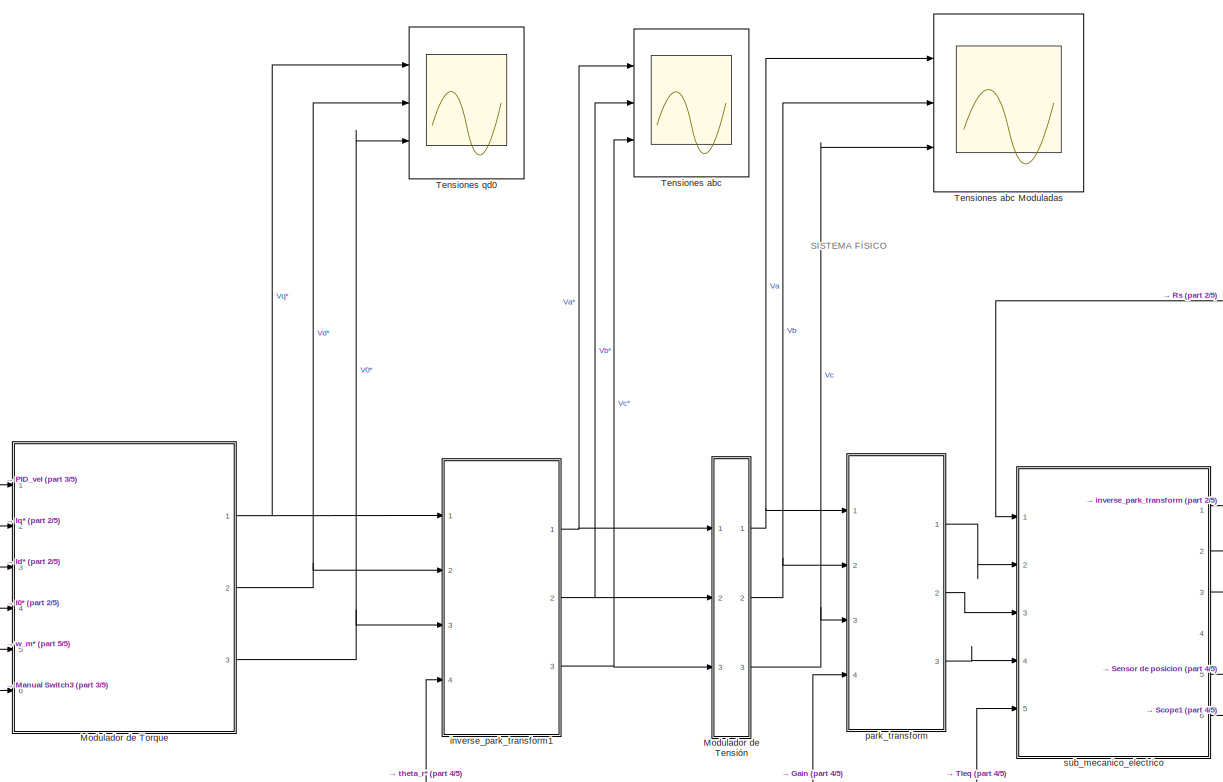
[diagram: root canvas - part 1/5, top center region]
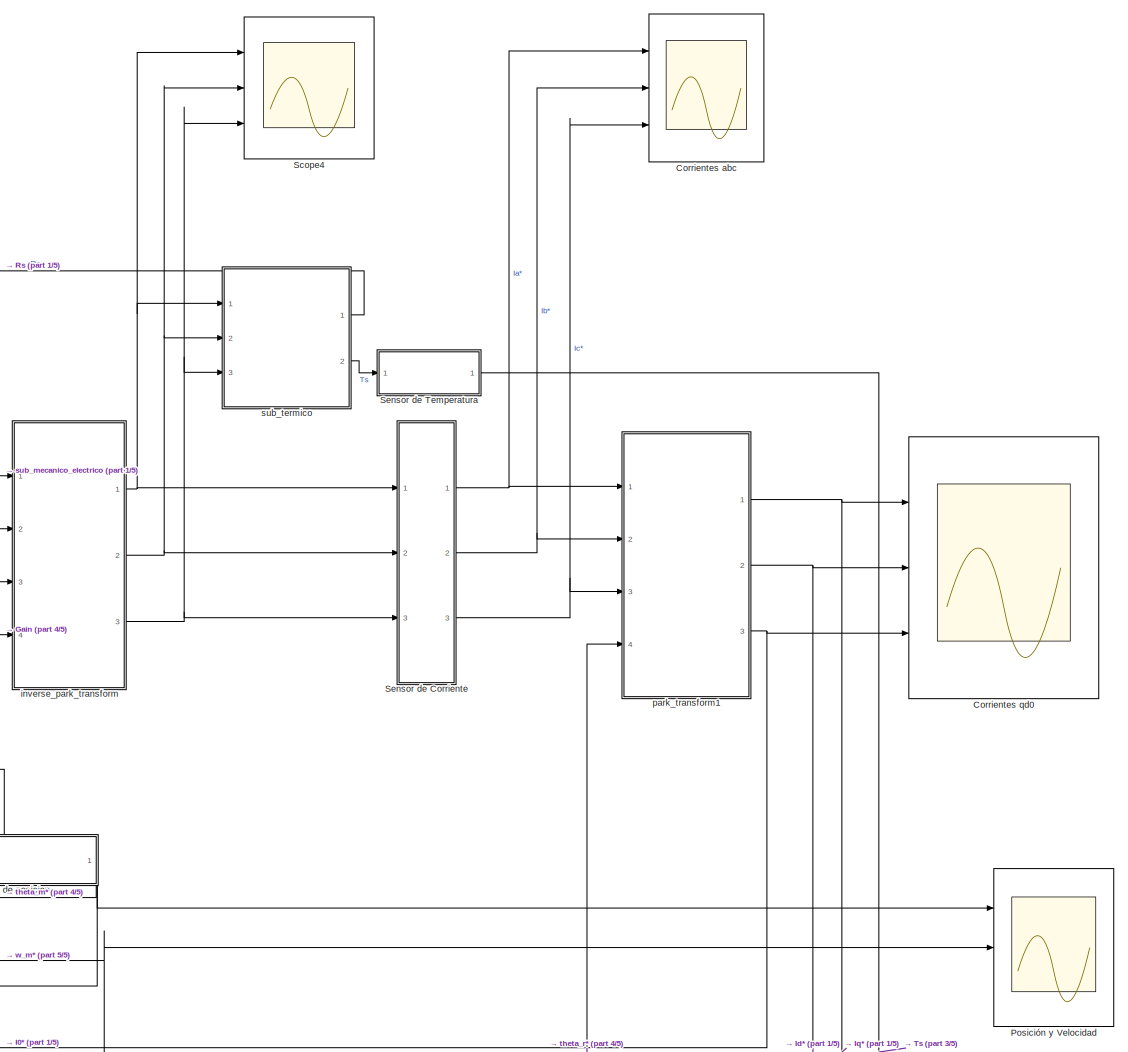
[diagram: root canvas - part 2/5, middle right region]
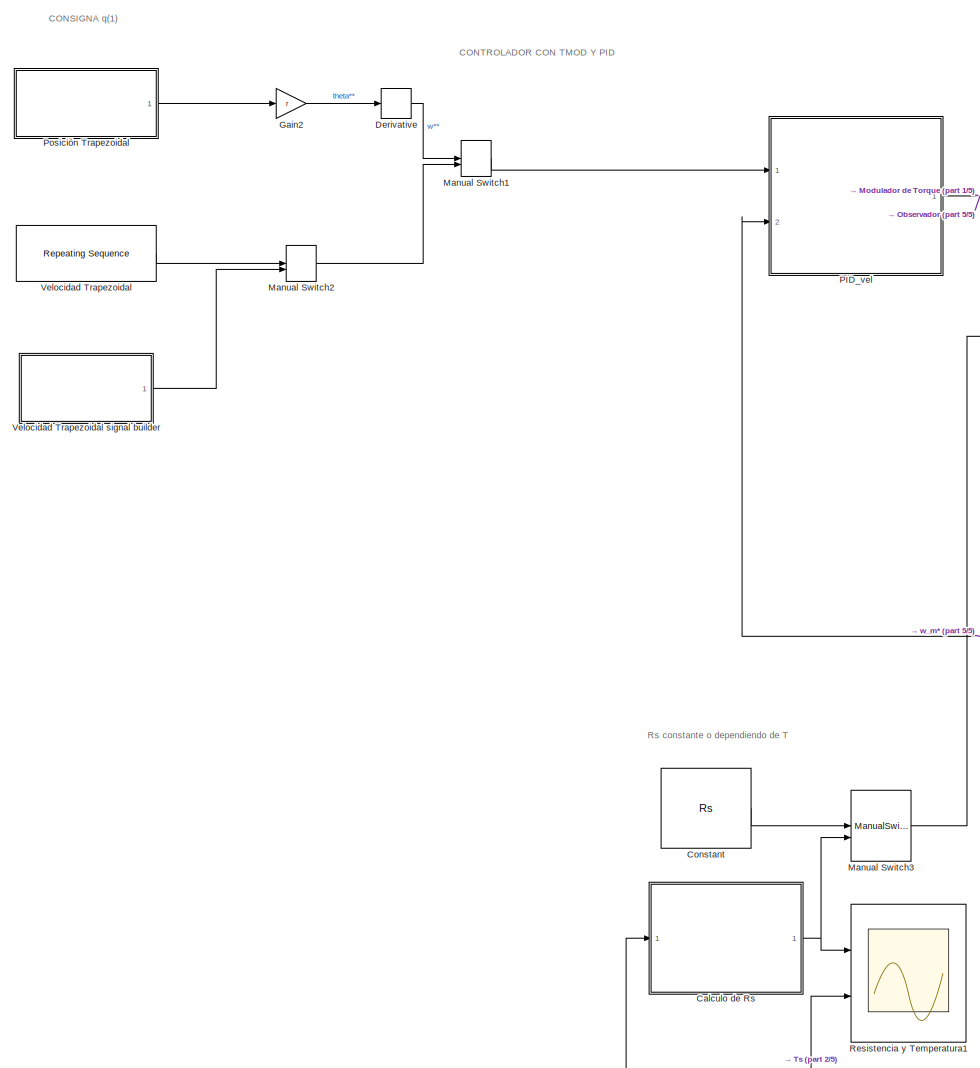
[diagram: root canvas - part 3/5, middle left region]
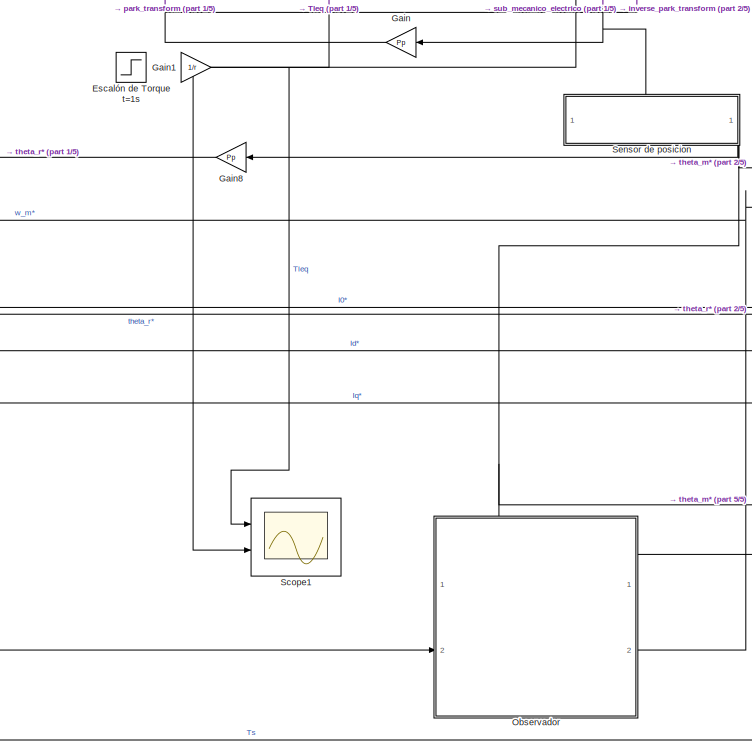
[diagram: root canvas - part 4/5, bottom center region]
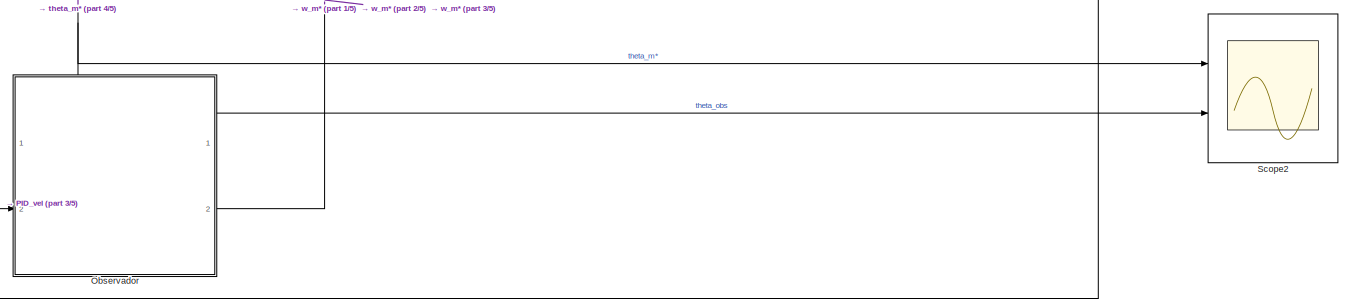
[diagram: root canvas - part 5/5, bottom right region]
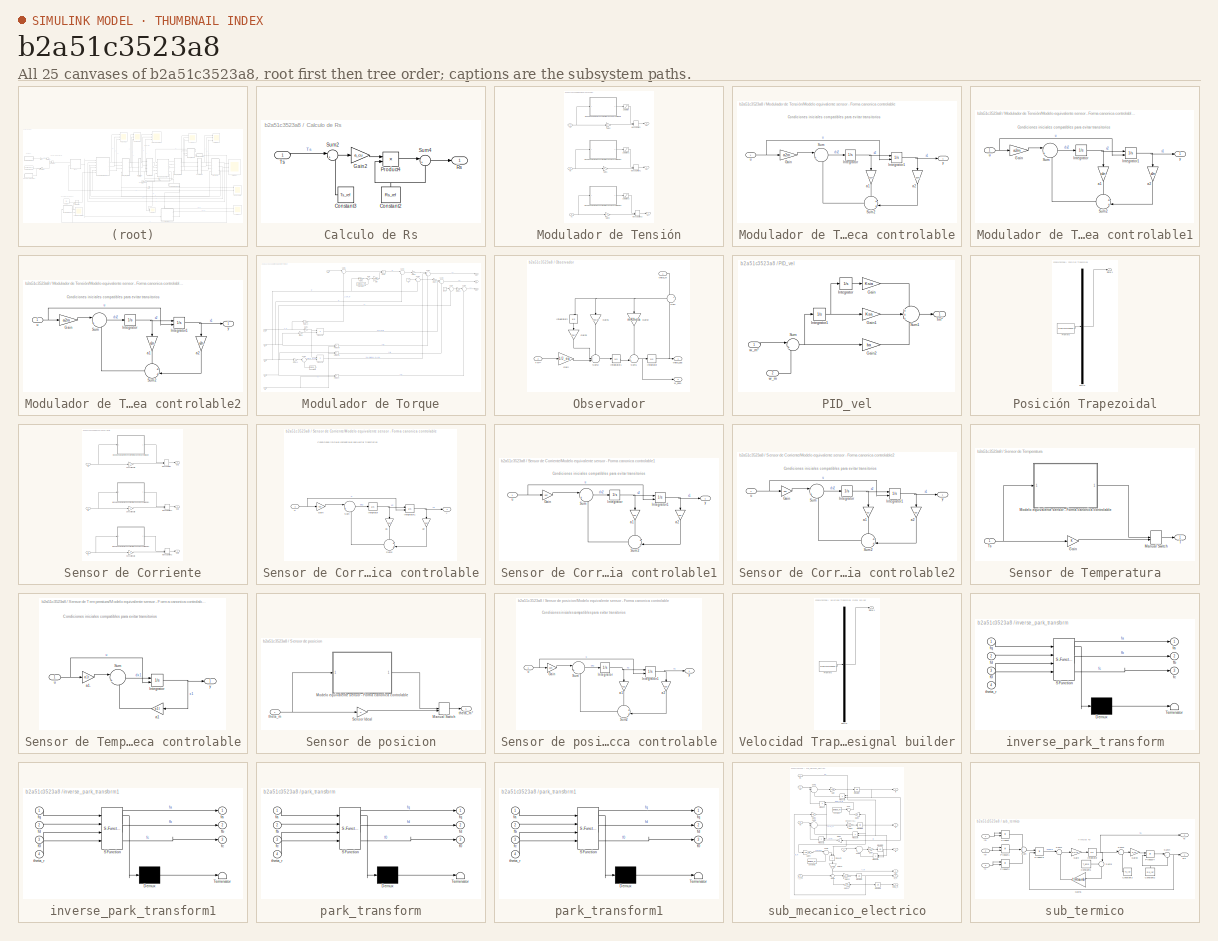
[diagram: thumbnail index - all 25 canvases of the model, root first then tree order]
MODEL slx_b2a51c3523a8
KIND model
CONFIG AbsTol = auto
CONFIG EnableMultiTasking = off
CONFIG FixedStep = auto
CONFIG MaxStep = 1e-4
CONFIG MinStep = auto
CONFIG RelTol = 1e-3
CONFIG SampleTimeConstraint = Unconstrained
CONFIG SolverName = VariableStepAuto
CONFIG StartTime = 0.0
CONFIG StopTime = 20
BLOCK [SubSystem] Calculo de Rs
  Ports = [1, 1]
  RequestExecContextInheritance = off
BLOCK [Constant] Calculo de Rs/Constant2
  NameLocation = right
  Value = Rs_ref
BLOCK [Constant] Calculo de Rs/Constant3
  Value = Ts_ref
BLOCK [Gain] Calculo de Rs/Gain2
  Gain = a_cu
BLOCK [Product] Calculo de Rs/Product4
  Ports = [2, 1]
BLOCK [Outport] Calculo de Rs/Rs
BLOCK [Sum] Calculo de Rs/Sum2
  Inputs = |+-
  Ports = [2, 1]
BLOCK [Sum] Calculo de Rs/Sum4
  Inputs = |++
  Ports = [2, 1]
BLOCK [Inport] Calculo de Rs/Ts
BLOCK [Constant] Constant
  Value = Rs
BLOCK [Scope] Corrientes abc
  Floating = off
  NumInputPorts = 3
  Ports = [3]
  ScopeSpecificationString = Simulink.scopes.TimeScopeBlockCfg('CurrentConfiguration', extmgr.ConfigurationSet(extmgr.Configuration('Core','General UI',true,'FigureColor',[0.156862745098039 0.156862745098039 0.156862745098039]),extmgr.Configuration('Core','Source UI',true),extmgr.Configuration('Sources','WiredSimulink',true,'DataLoggingVariableName','Corrientes_abc','DataLogging',true,'DataLoggingSaveFormat','StructureWithTim...<+1646ch>
BLOCK [Scope] Corrientes qd0
  Floating = off
  NumInputPorts = 3
  Ports = [3]
  ScopeSpecificationString = Simulink.scopes.TimeScopeBlockCfg('CurrentConfiguration', extmgr.ConfigurationSet(extmgr.Configuration('Core','General UI',true,'FigureColor',[0.156862745098039 0.156862745098039 0.156862745098039]),extmgr.Configuration('Core','Source UI',true),extmgr.Configuration('Sources','WiredSimulink',true,'DataLogging',true,'DataLoggingVariableName','Corrientes_qd0','DataLoggingSaveFormat','StructureWithTim...<+1645ch>
BLOCK [Derivative] Derivative
BLOCK [Step] Escalón de Torque t=1s
  After = Tlmax
  SampleTime = 0
BLOCK [Gain] Gain
  Gain = Pp
BLOCK [Gain] Gain1
  Gain = 1/r
BLOCK [Gain] Gain2
  Gain = r
BLOCK [Gain] Gain8
  Gain = Pp
BLOCK [ManualSwitch] Manual Switch1
  CurrentSetting = 0
BLOCK [ManualSwitch] Manual Switch2
  CurrentSetting = 0
BLOCK [ManualSwitch] Manual Switch3
  CurrentSetting = 0
BLOCK [SubSystem] Modulador de Tensión
  Ports = [3, 3]
  RequestExecContextInheritance = off
BLOCK [Gain] Modulador de Tensión/Gain1
BLOCK [Gain] Modulador de Tensión/Gain2
BLOCK [Gain] Modulador de Tensión/Gain3
BLOCK [ManualSwitch] Modulador de Tensión/Manual Switch
BLOCK [ManualSwitch] Modulador de Tensión/Manual Switch1
BLOCK [ManualSwitch] Modulador de Tensión/Manual Switch2
BLOCK [SubSystem] Modulador de Tensión/Modelo equivalente sensor - Forma canonica controlable
  Ports = [1, 1]
  RequestExecContextInheritance = off
BLOCK [Gain] Modulador de Tensión/Modelo equivalente sensor - Forma canonica controlable/Gain
  Gain = a2m
BLOCK [Integrator] Modulador de Tensión/Modelo equivalente sensor - Forma canonica controlable/Integrator
  Ports = [1, 1]
BLOCK [Integrator] Modulador de Tensión/Modelo equivalente sensor - Forma canonica controlable/Integrator1
  InitialConditionSource = external
  Ports = [2, 1]
BLOCK [Sum] Modulador de Tensión/Modelo equivalente sensor - Forma canonica controlable/Sum
  Inputs = |+-
  Ports = [2, 1]
BLOCK [Sum] Modulador de Tensión/Modelo equivalente sensor - Forma canonica controlable/Sum2
  Inputs = ++|
  Ports = [2, 1]
BLOCK [Gain] Modulador de Tensión/Modelo equivalente sensor - Forma canonica controlable/a1
  Gain = a1m
  NameLocation = left
BLOCK [Gain] Modulador de Tensión/Modelo equivalente sensor - Forma canonica controlable/a2
  Gain = a2m
  NameLocation = left
BLOCK [Inport] Modulador de Tensión/Modelo equivalente sensor - Forma canonica controlable/u
BLOCK [Outport] Modulador de Tensión/Modelo equivalente sensor - Forma canonica controlable/y
BLOCK [SubSystem] Modulador de Tensión/Modelo equivalente sensor - Forma canonica controlable1
  Ports = [1, 1]
  RequestExecContextInheritance = off
BLOCK [Gain] Modulador de Tensión/Modelo equivalente sensor - Forma canonica controlable1/Gain
  Gain = a2m
BLOCK [Integrator] Modulador de Tensión/Modelo equivalente sensor - Forma canonica controlable1/Integrator
  Ports = [1, 1]
BLOCK [Integrator] Modulador de Tensión/Modelo equivalente sensor - Forma canonica controlable1/Integrator1
  InitialConditionSource = external
  Ports = [2, 1]
BLOCK [Sum] Modulador de Tensión/Modelo equivalente sensor - Forma canonica controlable1/Sum
  Inputs = |+-
  Ports = [2, 1]
BLOCK [Sum] Modulador de Tensión/Modelo equivalente sensor - Forma canonica controlable1/Sum2
  Inputs = ++|
  Ports = [2, 1]
BLOCK [Gain] Modulador de Tensión/Modelo equivalente sensor - Forma canonica controlable1/a1
  Gain = a1m
  NameLocation = left
BLOCK [Gain] Modulador de Tensión/Modelo equivalente sensor - Forma canonica controlable1/a2
  Gain = a2m
  NameLocation = left
BLOCK [Inport] Modulador de Tensión/Modelo equivalente sensor - Forma canonica controlable1/u
BLOCK [Outport] Modulador de Tensión/Modelo equivalente sensor - Forma canonica controlable1/y
BLOCK [SubSystem] Modulador de Tensión/Modelo equivalente sensor - Forma canonica controlable2
  Ports = [1, 1]
  RequestExecContextInheritance = off
BLOCK [Gain] Modulador de Tensión/Modelo equivalente sensor - Forma canonica controlable2/Gain
  Gain = a2m
BLOCK [Integrator] Modulador de Tensión/Modelo equivalente sensor - Forma canonica controlable2/Integrator
  Ports = [1, 1]
BLOCK [Integrator] Modulador de Tensión/Modelo equivalente sensor - Forma canonica controlable2/Integrator1
  InitialConditionSource = external
  Ports = [2, 1]
BLOCK [Sum] Modulador de Tensión/Modelo equivalente sensor - Forma canonica controlable2/Sum
  Inputs = |+-
  Ports = [2, 1]
BLOCK [Sum] Modulador de Tensión/Modelo equivalente sensor - Forma canonica controlable2/Sum2
  Inputs = ++|
  Ports = [2, 1]
BLOCK [Gain] Modulador de Tensión/Modelo equivalente sensor - Forma canonica controlable2/a1
  Gain = a1m
  NameLocation = left
BLOCK [Gain] Modulador de Tensión/Modelo equivalente sensor - Forma canonica controlable2/a2
  Gain = a2m
  NameLocation = left
BLOCK [Inport] Modulador de Tensión/Modelo equivalente sensor - Forma canonica controlable2/u
BLOCK [Outport] Modulador de Tensión/Modelo equivalente sensor - Forma canonica controlable2/y
BLOCK [Saturate] Modulador de Tensión/Saturation
  LowerLimit = -sat
  UpperLimit = sat
BLOCK [Saturate] Modulador de Tensión/Saturation1
  LowerLimit = -sat
  UpperLimit = sat
BLOCK [Saturate] Modulador de Tensión/Saturation2
  LowerLimit = -sat
  UpperLimit = sat
BLOCK [Inport] Modulador de Tensión/Va
BLOCK [Outport] Modulador de Tensión/Va*
BLOCK [Inport] Modulador de Tensión/Vb
  Port = 2
BLOCK [Outport] Modulador de Tensión/Vb*
  Port = 2
BLOCK [Inport] Modulador de Tensión/Vc
  Port = 3
BLOCK [Outport] Modulador de Tensión/Vc*
  Port = 3
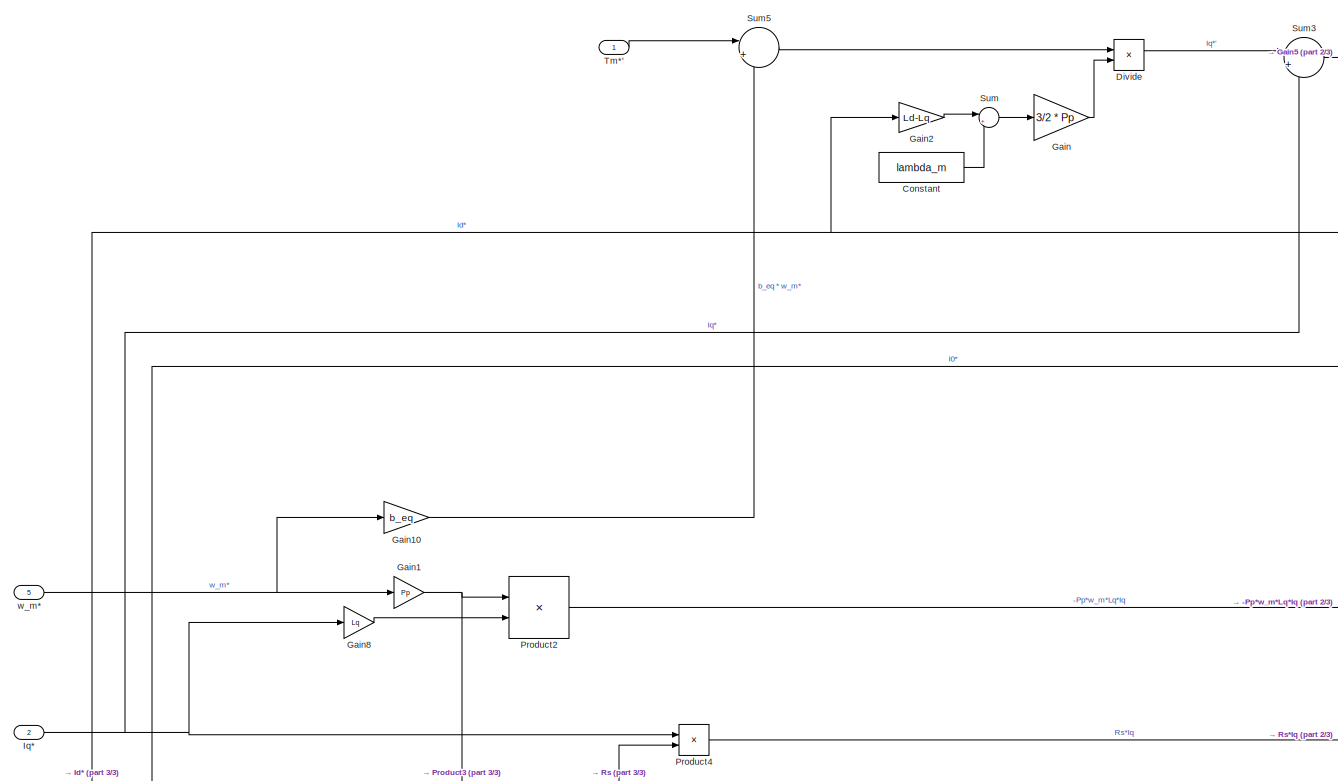
[diagram: Modulador de Torque - part 1/3, middle left region]
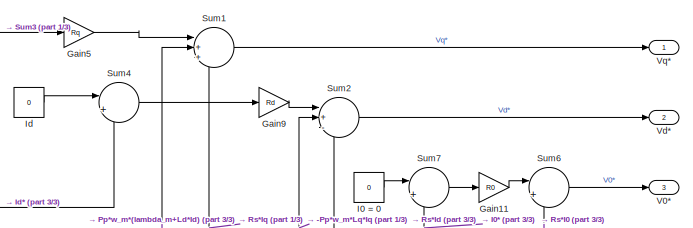
[diagram: Modulador de Torque - part 2/3, top right region]
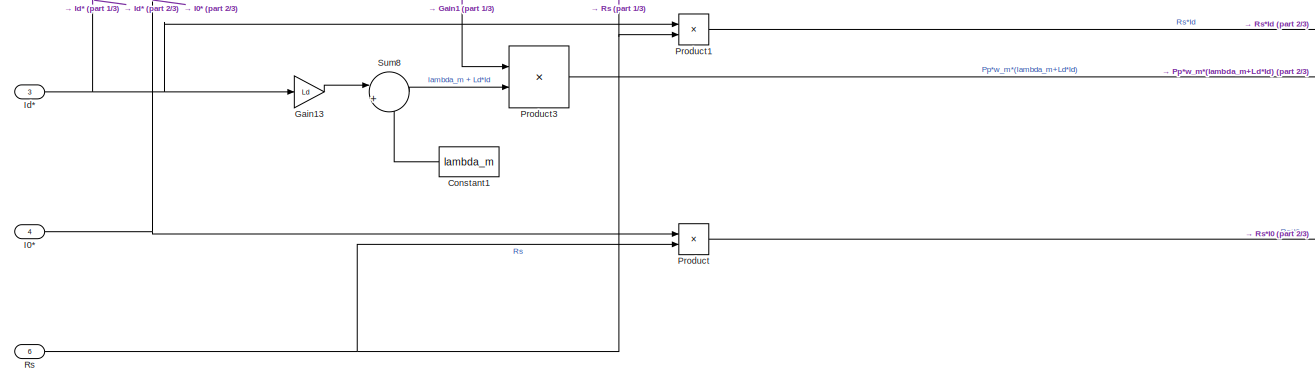
[diagram: Modulador de Torque - part 3/3, bottom left region]
BLOCK [SubSystem] Modulador de Torque
  Ports = [6, 3]
  RequestExecContextInheritance = off
BLOCK [Constant] Modulador de Torque/Constant
  Value = lambda_m
BLOCK [Constant] Modulador de Torque/Constant1
  Value = lambda_m
BLOCK [Product] Modulador de Torque/Divide
  Inputs = */
  Ports = [2, 1]
BLOCK [Gain] Modulador de Torque/Gain
  Gain = 3/2 * Pp
BLOCK [Gain] Modulador de Torque/Gain1
  Gain = Pp
BLOCK [Gain] Modulador de Torque/Gain10
  Gain = b_eq
BLOCK [Gain] Modulador de Torque/Gain11
  Gain = R0
BLOCK [Gain] Modulador de Torque/Gain13
  Gain = Ld
BLOCK [Gain] Modulador de Torque/Gain2
  Gain = Ld-Lq
BLOCK [Gain] Modulador de Torque/Gain5
  Gain = Rq
BLOCK [Gain] Modulador de Torque/Gain8
  Gain = Lq
BLOCK [Gain] Modulador de Torque/Gain9
  Gain = Rd
BLOCK [Constant] Modulador de Torque/I0 = 0
  Value = 0
BLOCK [Inport] Modulador de Torque/I0*
  Port = 4
BLOCK [Constant] Modulador de Torque/Id
  Value = 0
BLOCK [Inport] Modulador de Torque/Id*
  Port = 3
BLOCK [Inport] Modulador de Torque/Iq*
  Port = 2
BLOCK [Product] Modulador de Torque/Product
  Ports = [2, 1]
BLOCK [Product] Modulador de Torque/Product1
  Ports = [2, 1]
BLOCK [Product] Modulador de Torque/Product2
  Ports = [2, 1]
BLOCK [Product] Modulador de Torque/Product3
  Ports = [2, 1]
BLOCK [Product] Modulador de Torque/Product4
  Ports = [2, 1]
BLOCK [Inport] Modulador de Torque/Rs
  Port = 6
BLOCK [Sum] Modulador de Torque/Sum
  Inputs = |++
  Ports = [2, 1]
BLOCK [Sum] Modulador de Torque/Sum1
  Inputs = |+++
  Ports = [3, 1]
BLOCK [Sum] Modulador de Torque/Sum2
  Inputs = |+-+
  Ports = [3, 1]
BLOCK [Sum] Modulador de Torque/Sum3
  Inputs = |+-
  Ports = [2, 1]
BLOCK [Sum] Modulador de Torque/Sum4
  Inputs = |+-
  Ports = [2, 1]
BLOCK [Sum] Modulador de Torque/Sum5
  Inputs = |++
  Ports = [2, 1]
BLOCK [Sum] Modulador de Torque/Sum6
  Inputs = |++
  Ports = [2, 1]
BLOCK [Sum] Modulador de Torque/Sum7
  Inputs = |+-
  Ports = [2, 1]
BLOCK [Sum] Modulador de Torque/Sum8
  Inputs = |++
  Ports = [2, 1]
BLOCK [Inport] Modulador de Torque/Tm*'
BLOCK [Outport] Modulador de Torque/V0*
  Port = 3
BLOCK [Outport] Modulador de Torque/Vd*
  Port = 2
BLOCK [Outport] Modulador de Torque/Vq*
BLOCK [Inport] Modulador de Torque/w_m*
  Port = 5
BLOCK [SubSystem] Observador
  Ports = [2, 2]
  RequestExecContextInheritance = off
BLOCK [Gain] Observador/Gain
  Gain = 1/J_eq
BLOCK [Gain] Observador/Gain1
  Gain = mKw
  NameLocation = left
BLOCK [Gain] Observador/Gain2
  Gain = mKtheta
  NameLocation = left
BLOCK [Gain] Observador/Gain3
  Gain = mKi
  NameLocation = left
BLOCK [Integrator] Observador/Integrator
  Ports = [1, 1]
BLOCK [Integrator] Observador/Integrator1
  Ports = [1, 1]
BLOCK [Integrator] Observador/Integrator2
  NameLocation = left
  Ports = [1, 1]
BLOCK [Sum] Observador/Sum
  Inputs = +|-
  Ports = [2, 1]
BLOCK [Sum] Observador/Sum1
  Inputs = ++|
  Ports = [2, 1]
BLOCK [Sum] Observador/Sum2
  Inputs = +++||
  Ports = [3, 1]
BLOCK [Inport] Observador/Tm**
  Port = 2
BLOCK [Inport] Observador/theta_m
BLOCK [Outport] Observador/theta_obs
BLOCK [Outport] Observador/w_obs1
  Port = 2
BLOCK [SubSystem] PID_vel
  Ports = [2, 1]
  RequestExecContextInheritance = off
BLOCK [Gain] PID_vel/Gain
  Gain = Ksia
BLOCK [Gain] PID_vel/Gain1
  Gain = Ksa
BLOCK [Gain] PID_vel/Gain2
  Gain = ba
BLOCK [Integrator] PID_vel/Integrator
  Ports = [1, 1]
BLOCK [Integrator] PID_vel/Integrator1
  Ports = [1, 1]
BLOCK [Sum] PID_vel/Sum
  Inputs = |+-
  Ports = [2, 1]
BLOCK [Sum] PID_vel/Sum1
  Inputs = +++
  Ports = [3, 1]
BLOCK [Outport] PID_vel/Tm*
BLOCK [Inport] PID_vel/w_m
  Port = 2
BLOCK [Inport] PID_vel/w_m*
BLOCK [SubSystem] Posición Trapezoidal
  ClipboardFcn = sigbuilder_block('clipboard');
  CloseFcn = sigbuilder_block('close');
  ContinueFcn = sigbuilder_block('continue');
  CopyFcn = sigbuilder_block('copy');
  DeleteFcn = sigbuilder_block('delete');
  LoadFcn = sigbuilder_block('load');
  MaskHideContents = on
  ModelCloseFcn = sigbuilder_block('modelClose');
  NameChangeFcn = sigbuilder_block('namechange');
  OpenFcn = sigbuilder_block('open',[-53.25 9 1012.5 477.75 ]);
  PauseFcn = sigbuilder_block('pause');
  Ports = [0, 1]
  PreSaveFcn = sigbuilder_block('preSave');
  RequestExecContextInheritance = off
  StartFcn = sigbuilder_block('start');
  StopFcn = sigbuilder_block('stop');
  Tag = STV Subsys
BLOCK [Demux] Posición Trapezoidal/Demux
  DisplayOption = none
  Outputs = 1
  Ports = [1, 1]
  Tag = STV Demux
BLOCK [FromWorkspace] Posición Trapezoidal/FromWs
  Tag = STV FromWs
  VariableName = tuvar
BLOCK [Outport] Posición Trapezoidal/Signal 1
  Tag = STV Outport
BLOCK [Scope] Posición y Velocidad
  Floating = off
  NumInputPorts = 3
  Ports = [3]
  ScopeSpecificationString = Simulink.scopes.TimeScopeBlockCfg('CurrentConfiguration', extmgr.ConfigurationSet(extmgr.Configuration('Core','General UI',true,'FigureColor',[0.156862745098039 0.156862745098039 0.156862745098039]),extmgr.Configuration('Core','Source UI',true),extmgr.Configuration('Sources','WiredSimulink',true,'DataLoggingVariableName','PosVel_med','DataLogging',true,'DataLoggingSaveFormat','StructureWithTime'),...<+1618ch>
BLOCK [Scope] Resistencia y Temperatura1
  Floating = off
  NumInputPorts = 2
  Ports = [2]
  ScopeSpecificationString = Simulink.scopes.TimeScopeBlockCfg('CurrentConfiguration', extmgr.ConfigurationSet(extmgr.Configuration('Core','General UI',true,'FigureColor',[0.156862745098039 0.156862745098039 0.156862745098039]),extmgr.Configuration('Core','Source UI',true),extmgr.Configuration('Sources','WiredSimulink',true,'DataLoggingVariableName','Subs_Termico','DataLogging',true,'DataLoggingSaveFormat','StructureWithTime'...<+1687ch>
BLOCK [Scope] Scope1
  Floating = off
  NumInputPorts = 2
  Ports = [2]
  ScopeSpecificationString = Simulink.scopes.TimeScopeBlockCfg('CurrentConfiguration', extmgr.ConfigurationSet(extmgr.Configuration('Core','General UI',true),extmgr.Configuration('Core','Source UI',true),extmgr.Configuration('Sources','WiredSimulink',true,'DataLoggingVariableName','Torques','DataLogging',true,'DataLoggingSaveFormat','StructureWithTime'),extmgr.Configuration('Visuals','Time Domain',true,'SerializedDisplays',{s...<+1564ch>
BLOCK [Scope] Scope2
  Floating = off
  NumInputPorts = 2
  Ports = [2]
  ScopeSpecificationString = Simulink.scopes.TimeScopeBlockCfg('CurrentConfiguration', extmgr.ConfigurationSet(extmgr.Configuration('Core','General UI',true),extmgr.Configuration('Core','Source UI',true),extmgr.Configuration('Sources','WiredSimulink',true,'DataLoggingVariableName','Pos_Obs','DataLogging',true,'DataLoggingSaveFormat','StructureWithTime'),extmgr.Configuration('Visuals','Time Domain',true,'SerializedDisplays',{s...<+1580ch>
BLOCK [Scope] Scope4
  Floating = off
  NumInputPorts = 3
  Ports = [3]
  ScopeSpecificationString = Simulink.scopes.TimeScopeBlockCfg('CurrentConfiguration', extmgr.ConfigurationSet(extmgr.Configuration('Core','General UI',true),extmgr.Configuration('Core','Source UI',true),extmgr.Configuration('Sources','WiredSimulink',true,'DataLoggingVariableName','Corrientes_abc_reales','DataLogging',true),extmgr.Configuration('Visuals','Time Domain',true,'SerializedDisplays',{struct('MinYLimReal','-1.97625'...<+1576ch>
BLOCK [SubSystem] Sensor de Corriente
  Ports = [3, 3]
  RequestExecContextInheritance = off
BLOCK [Inport] Sensor de Corriente/Ia
BLOCK [Inport] Sensor de Corriente/Ib
  Port = 2
BLOCK [Inport] Sensor de Corriente/Ic
  Port = 3
BLOCK [ManualSwitch] Sensor de Corriente/Manual Switch
BLOCK [ManualSwitch] Sensor de Corriente/Manual Switch1
BLOCK [ManualSwitch] Sensor de Corriente/Manual Switch2
BLOCK [SubSystem] Sensor de Corriente/Modelo equivalente sensor - Forma canonica controlable
  Ports = [1, 1]
  RequestExecContextInheritance = off
BLOCK [Gain] Sensor de Corriente/Modelo equivalente sensor - Forma canonica controlable/Gain
  Gain = a2c
BLOCK [Integrator] Sensor de Corriente/Modelo equivalente sensor - Forma canonica controlable/Integrator
  Ports = [1, 1]
BLOCK [Integrator] Sensor de Corriente/Modelo equivalente sensor - Forma canonica controlable/Integrator1
  InitialConditionSource = external
  Ports = [2, 1]
BLOCK [Sum] Sensor de Corriente/Modelo equivalente sensor - Forma canonica controlable/Sum
  Inputs = |+-
  Ports = [2, 1]
BLOCK [Sum] Sensor de Corriente/Modelo equivalente sensor - Forma canonica controlable/Sum2
  Inputs = ++|
  Ports = [2, 1]
BLOCK [Gain] Sensor de Corriente/Modelo equivalente sensor - Forma canonica controlable/a1
  Gain = a1c
  NameLocation = left
BLOCK [Gain] Sensor de Corriente/Modelo equivalente sensor - Forma canonica controlable/a2
  Gain = a2c
  NameLocation = left
BLOCK [Inport] Sensor de Corriente/Modelo equivalente sensor - Forma canonica controlable/u
BLOCK [Outport] Sensor de Corriente/Modelo equivalente sensor - Forma canonica controlable/y
BLOCK [SubSystem] Sensor de Corriente/Modelo equivalente sensor - Forma canonica controlable1
  Ports = [1, 1]
  RequestExecContextInheritance = off
BLOCK [Gain] Sensor de Corriente/Modelo equivalente sensor - Forma canonica controlable1/Gain
  Gain = a2c
BLOCK [Integrator] Sensor de Corriente/Modelo equivalente sensor - Forma canonica controlable1/Integrator
  Ports = [1, 1]
BLOCK [Integrator] Sensor de Corriente/Modelo equivalente sensor - Forma canonica controlable1/Integrator1
  InitialConditionSource = external
  Ports = [2, 1]
BLOCK [Sum] Sensor de Corriente/Modelo equivalente sensor - Forma canonica controlable1/Sum
  Inputs = |+-
  Ports = [2, 1]
BLOCK [Sum] Sensor de Corriente/Modelo equivalente sensor - Forma canonica controlable1/Sum2
  Inputs = ++|
  Ports = [2, 1]
BLOCK [Gain] Sensor de Corriente/Modelo equivalente sensor - Forma canonica controlable1/a1
  Gain = a1c
  NameLocation = left
BLOCK [Gain] Sensor de Corriente/Modelo equivalente sensor - Forma canonica controlable1/a2
  Gain = a2c
  NameLocation = left
BLOCK [Inport] Sensor de Corriente/Modelo equivalente sensor - Forma canonica controlable1/u
BLOCK [Outport] Sensor de Corriente/Modelo equivalente sensor - Forma canonica controlable1/y
BLOCK [SubSystem] Sensor de Corriente/Modelo equivalente sensor - Forma canonica controlable2
  Ports = [1, 1]
  RequestExecContextInheritance = off
BLOCK [Gain] Sensor de Corriente/Modelo equivalente sensor - Forma canonica controlable2/Gain
  Gain = a2c
BLOCK [Integrator] Sensor de Corriente/Modelo equivalente sensor - Forma canonica controlable2/Integrator
  Ports = [1, 1]
BLOCK [Integrator] Sensor de Corriente/Modelo equivalente sensor - Forma canonica controlable2/Integrator1
  InitialConditionSource = external
  Ports = [2, 1]
BLOCK [Sum] Sensor de Corriente/Modelo equivalente sensor - Forma canonica controlable2/Sum
  Inputs = |+-
  Ports = [2, 1]
BLOCK [Sum] Sensor de Corriente/Modelo equivalente sensor - Forma canonica controlable2/Sum2
  Inputs = ++|
  Ports = [2, 1]
BLOCK [Gain] Sensor de Corriente/Modelo equivalente sensor - Forma canonica controlable2/a1
  Gain = a1c
  NameLocation = left
BLOCK [Gain] Sensor de Corriente/Modelo equivalente sensor - Forma canonica controlable2/a2
  Gain = a2c
  NameLocation = left
BLOCK [Inport] Sensor de Corriente/Modelo equivalente sensor - Forma canonica controlable2/u
BLOCK [Outport] Sensor de Corriente/Modelo equivalente sensor - Forma canonica controlable2/y
BLOCK [Outport] Sensor de Corriente/Out1
BLOCK [Outport] Sensor de Corriente/Out2
  Port = 2
BLOCK [Outport] Sensor de Corriente/Out3
  Port = 3
BLOCK [Gain] Sensor de Corriente/Sensor Ideal Ia
BLOCK [Gain] Sensor de Corriente/Sensor Ideal Ib
BLOCK [Gain] Sensor de Corriente/Sensor Ideal Ic
BLOCK [SubSystem] Sensor de Temperatura
  Ports = [1, 1]
  RequestExecContextInheritance = off
BLOCK [Gain] Sensor de Temperatura/Gain
BLOCK [ManualSwitch] Sensor de Temperatura/Manual Switch
BLOCK [SubSystem] Sensor de Temperatura/Modelo equivalente sensor - Forma canonica controlable
  Ports = [1, 1]
  RequestExecContextInheritance = off
BLOCK [Integrator] Sensor de Temperatura/Modelo equivalente sensor - Forma canonica controlable/Integrator
  InitialCondition = T_0
  InitialConditionSource = external
  Ports = [2, 1]
BLOCK [Sum] Sensor de Temperatura/Modelo equivalente sensor - Forma canonica controlable/Sum
  Inputs = |+-
  Ports = [2, 1]
BLOCK [Gain] Sensor de Temperatura/Modelo equivalente sensor - Forma canonica controlable/a1
  Gain = a1t
  NameLocation = top
BLOCK [Gain] Sensor de Temperatura/Modelo equivalente sensor - Forma canonica controlable/a1.
  Gain = a1t
BLOCK [Inport] Sensor de Temperatura/Modelo equivalente sensor - Forma canonica controlable/u
BLOCK [Outport] Sensor de Temperatura/Modelo equivalente sensor - Forma canonica controlable/y
BLOCK [Outport] Sensor de Temperatura/T
BLOCK [Inport] Sensor de Temperatura/Ts
BLOCK [SubSystem] Sensor de posicion
  NameLocation = right
  PortSchema = {"entries":[{"content":{"sides":[{"content":{"connectorIds":[]},"type":"ConnectorPlacement.EquallySpacedRectSide","uuid":"b536d0fd-a8b9-4fb9-bd2d-8cdbea63ffed"},{"content":{"connectorIds":[],"side":"RIGHT"},"type":"ConnectorPlacement.EquallySpacedRectSide","uuid":"53663a0b-a681-499d-8c35-4379374d5e5a"},{"content":{"connectorIds":["In1"],"side":"TOP"},"type":"ConnectorPlacement.EquallySpacedRectSid...<+384ch>
  Ports = [1, 1]
  RequestExecContextInheritance = off
BLOCK [ManualSwitch] Sensor de posicion/Manual Switch
BLOCK [SubSystem] Sensor de posicion/Modelo equivalente sensor - Forma canonica controlable
  Ports = [1, 1]
  RequestExecContextInheritance = off
BLOCK [Gain] Sensor de posicion/Modelo equivalente sensor - Forma canonica controlable/Gain
  Gain = a2p
BLOCK [Integrator] Sensor de posicion/Modelo equivalente sensor - Forma canonica controlable/Integrator
  Ports = [1, 1]
BLOCK [Integrator] Sensor de posicion/Modelo equivalente sensor - Forma canonica controlable/Integrator1
  InitialConditionSource = external
  Ports = [2, 1]
BLOCK [Sum] Sensor de posicion/Modelo equivalente sensor - Forma canonica controlable/Sum
  Inputs = |+-
  Ports = [2, 1]
BLOCK [Sum] Sensor de posicion/Modelo equivalente sensor - Forma canonica controlable/Sum2
  Inputs = ++|
  Ports = [2, 1]
BLOCK [Gain] Sensor de posicion/Modelo equivalente sensor - Forma canonica controlable/a1
  Gain = a1p
  NameLocation = left
BLOCK [Gain] Sensor de posicion/Modelo equivalente sensor - Forma canonica controlable/a2
  Gain = a2p
  NameLocation = left
BLOCK [Inport] Sensor de posicion/Modelo equivalente sensor - Forma canonica controlable/u
BLOCK [Outport] Sensor de posicion/Modelo equivalente sensor - Forma canonica controlable/y
BLOCK [Gain] Sensor de posicion/Sensor Ideal
BLOCK [Inport] Sensor de posicion/theta_m
BLOCK [Outport] Sensor de posicion/theta_m*
BLOCK [Scope] Tensiones abc
  Floating = off
  NumInputPorts = 3
  Ports = [3]
  ScopeSpecificationString = Simulink.scopes.TimeScopeBlockCfg('CurrentConfiguration', extmgr.ConfigurationSet(extmgr.Configuration('Core','General UI',true,'FigureColor',[0.156862745098039 0.156862745098039 0.156862745098039]),extmgr.Configuration('Core','Source UI',true),extmgr.Configuration('Sources','WiredSimulink',true,'DataLoggingVariableName','Tensiones_abc','DataLogging',true,'DataLoggingSaveFormat','StructureWithTime...<+1666ch>
BLOCK [Scope] Tensiones abc Moduladas
  Floating = off
  NumInputPorts = 3
  Ports = [3]
  ScopeSpecificationString = Simulink.scopes.TimeScopeBlockCfg('CurrentConfiguration', extmgr.ConfigurationSet(extmgr.Configuration('Core','General UI',true),extmgr.Configuration('Core','Source UI',true),extmgr.Configuration('Sources','WiredSimulink',true,'DataLoggingVariableName','Tensiones_abc_moduladas','DataLogging',true,'DataLoggingSaveFormat','StructureWithTime'),extmgr.Configuration('Visuals','Time Domain',true,'Serial...<+1572ch>
BLOCK [Scope] Tensiones qd0
  Floating = off
  NumInputPorts = 3
  Ports = [3]
  ScopeSpecificationString = Simulink.scopes.TimeScopeBlockCfg('CurrentConfiguration', extmgr.ConfigurationSet(extmgr.Configuration('Core','General UI',true,'FigureColor',[0.156862745098039 0.156862745098039 0.156862745098039]),extmgr.Configuration('Core','Source UI',true),extmgr.Configuration('Sources','WiredSimulink',true,'DataLoggingVariableName','Tensiones_qd0','DataLogging',true,'DataLoggingSaveFormat','StructureWithTime...<+1624ch>
BLOCK [Reference] Velocidad Trapezoidal  REF=simulink/Sources/Repeating
Sequence
  Ports = [0, 1]
  SourceBlock = simulink/Sources/Repeating\nSequence
  SourceProductBaseCode = SL
  SourceType = Repeating table
BLOCK [SubSystem] Velocidad Trapezoidal signal builder
  ClipboardFcn = sigbuilder_block('clipboard');
  CloseFcn = sigbuilder_block('close');
  ContinueFcn = sigbuilder_block('continue');
  CopyFcn = sigbuilder_block('copy');
  DeleteFcn = sigbuilder_block('delete');
  LoadFcn = sigbuilder_block('load');
  MaskHideContents = on
  ModelCloseFcn = sigbuilder_block('modelClose');
  NameChangeFcn = sigbuilder_block('namechange');
  OpenFcn = sigbuilder_block('open',[367.5 194 550.5 400 ]);
  PauseFcn = sigbuilder_block('pause');
  Ports = [0, 1]
  PreSaveFcn = sigbuilder_block('preSave');
  RequestExecContextInheritance = off
  StartFcn = sigbuilder_block('start');
  StopFcn = sigbuilder_block('stop');
  Tag = STV Subsys
BLOCK [Demux] Velocidad Trapezoidal signal builder/Demux
  DisplayOption = none
  Outputs = 1
  Ports = [1, 1]
  Tag = STV Demux
BLOCK [FromWorkspace] Velocidad Trapezoidal signal builder/FromWs
  Tag = STV FromWs
  VariableName = tuvar
BLOCK [Outport] Velocidad Trapezoidal signal builder/Signal 1
  Tag = STV Outport
BLOCK [SubSystem] inverse_park_transform
  ErrorFcn = Stateflow.Translate.translate
  PermitHierarchicalResolution = ExplicitOnly
  Ports = [4, 3]
  RequestExecContextInheritance = off
  SFBlockType = MATLAB Function
  TreatAsAtomicUnit = on
BLOCK [Demux] inverse_park_transform/ Demux 
  Outputs = 1
  Ports = [1, 1]
BLOCK [S-Function] inverse_park_transform/ SFunction 
  EnableBusSupport = on
  FunctionName = sf_sfun
  PortCounts = [4 4]
  Ports = [4, 4]
  SFcnIsStateOwnerBlock = off
  SFunctionDeploymentMode = off
  Tag = Stateflow S-Function 35
BLOCK [Terminator] inverse_park_transform/ Terminator 
BLOCK [Inport] inverse_park_transform/f0
  Port = 3
BLOCK [Outport] inverse_park_transform/fa
BLOCK [Outport] inverse_park_transform/fb
  Port = 2
BLOCK [Outport] inverse_park_transform/fc
  Port = 3
BLOCK [Inport] inverse_park_transform/fd
  Port = 2
BLOCK [Inport] inverse_park_transform/fq
BLOCK [Inport] inverse_park_transform/theta_r
  Port = 4
BLOCK [SubSystem] inverse_park_transform1
  ErrorFcn = Stateflow.Translate.translate
  PermitHierarchicalResolution = ExplicitOnly
  Ports = [4, 3]
  RequestExecContextInheritance = off
  SFBlockType = MATLAB Function
  TreatAsAtomicUnit = on
BLOCK [Demux] inverse_park_transform1/ Demux 
  Outputs = 1
  Ports = [1, 1]
BLOCK [S-Function] inverse_park_transform1/ SFunction 
  EnableBusSupport = on
  FunctionName = sf_sfun
  PortCounts = [4 4]
  Ports = [4, 4]
  SFcnIsStateOwnerBlock = off
  SFunctionDeploymentMode = off
  Tag = Stateflow S-Function 36
BLOCK [Terminator] inverse_park_transform1/ Terminator 
BLOCK [Inport] inverse_park_transform1/f0
  Port = 3
BLOCK [Outport] inverse_park_transform1/fa
BLOCK [Outport] inverse_park_transform1/fb
  Port = 2
BLOCK [Outport] inverse_park_transform1/fc
  Port = 3
BLOCK [Inport] inverse_park_transform1/fd
  Port = 2
BLOCK [Inport] inverse_park_transform1/fq
BLOCK [Inport] inverse_park_transform1/theta_r
  Port = 4
BLOCK [SubSystem] park_transform
  ErrorFcn = Stateflow.Translate.translate
  PermitHierarchicalResolution = ExplicitOnly
  Ports = [4, 3]
  RequestExecContextInheritance = off
  SFBlockType = MATLAB Function
  TreatAsAtomicUnit = on
BLOCK [Demux] park_transform/ Demux 
  Outputs = 1
  Ports = [1, 1]
BLOCK [S-Function] park_transform/ SFunction 
  EnableBusSupport = on
  FunctionName = sf_sfun
  PortCounts = [4 4]
  Ports = [4, 4]
  SFcnIsStateOwnerBlock = off
  SFunctionDeploymentMode = off
  Tag = Stateflow S-Function 37
BLOCK [Terminator] park_transform/ Terminator 
BLOCK [Outport] park_transform/f0
  Port = 3
BLOCK [Inport] park_transform/fa
BLOCK [Inport] park_transform/fb
  Port = 2
BLOCK [Inport] park_transform/fc
  Port = 3
BLOCK [Outport] park_transform/fd
  Port = 2
BLOCK [Outport] park_transform/fq
BLOCK [Inport] park_transform/theta_r
  Port = 4
BLOCK [SubSystem] park_transform1
  ErrorFcn = Stateflow.Translate.translate
  PermitHierarchicalResolution = ExplicitOnly
  Ports = [4, 3]
  RequestExecContextInheritance = off
  SFBlockType = MATLAB Function
  TreatAsAtomicUnit = on
BLOCK [Demux] park_transform1/ Demux 
  Outputs = 1
  Ports = [1, 1]
BLOCK [S-Function] park_transform1/ SFunction 
  EnableBusSupport = on
  FunctionName = sf_sfun
  PortCounts = [4 4]
  Ports = [4, 4]
  SFcnIsStateOwnerBlock = off
  SFunctionDeploymentMode = off
  Tag = Stateflow S-Function 38
BLOCK [Terminator] park_transform1/ Terminator 
BLOCK [Outport] park_transform1/f0
  Port = 3
BLOCK [Inport] park_transform1/fa
BLOCK [Inport] park_transform1/fb
  Port = 2
BLOCK [Inport] park_transform1/fc
  Port = 3
BLOCK [Outport] park_transform1/fd
  Port = 2
BLOCK [Outport] park_transform1/fq
BLOCK [Inport] park_transform1/theta_r
  Port = 4
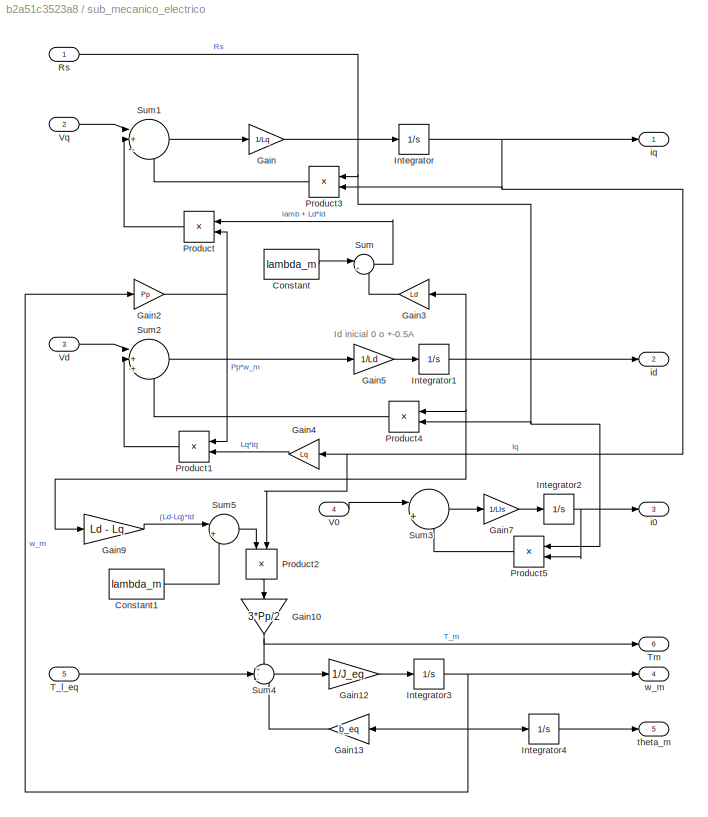
BLOCK [SubSystem] sub_mecanico_electrico
  Ports = [5, 6]
  RequestExecContextInheritance = off
BLOCK [Constant] sub_mecanico_electrico/Constant
  Value = lambda_m
BLOCK [Constant] sub_mecanico_electrico/Constant1
  Value = lambda_m
BLOCK [Gain] sub_mecanico_electrico/Gain
  Gain = 1/Lq
BLOCK [Gain] sub_mecanico_electrico/Gain10
  Gain = 3*Pp/2
  NameLocation = left
BLOCK [Gain] sub_mecanico_electrico/Gain12
  Gain = 1/J_eq
BLOCK [Gain] sub_mecanico_electrico/Gain13
  Gain = b_eq
BLOCK [Gain] sub_mecanico_electrico/Gain2
  Gain = Pp
BLOCK [Gain] sub_mecanico_electrico/Gain3
  Gain = Ld
BLOCK [Gain] sub_mecanico_electrico/Gain4
  Gain = Lq
  NameLocation = top
BLOCK [Gain] sub_mecanico_electrico/Gain5
  Gain = 1/Ld
BLOCK [Gain] sub_mecanico_electrico/Gain7
  Gain = 1/Lls
BLOCK [Gain] sub_mecanico_electrico/Gain9
  Gain = Ld - Lq
BLOCK [Integrator] sub_mecanico_electrico/Integrator
  Ports = [1, 1]
BLOCK [Integrator] sub_mecanico_electrico/Integrator1
  InitialCondition = Id_0
  Ports = [1, 1]
BLOCK [Integrator] sub_mecanico_electrico/Integrator2
  Ports = [1, 1]
BLOCK [Integrator] sub_mecanico_electrico/Integrator3
  Ports = [1, 1]
BLOCK [Integrator] sub_mecanico_electrico/Integrator4
  Ports = [1, 1]
BLOCK [Product] sub_mecanico_electrico/Product
  Ports = [2, 1]
BLOCK [Product] sub_mecanico_electrico/Product1
  Ports = [2, 1]
BLOCK [Product] sub_mecanico_electrico/Product2
  NameLocation = left
  Ports = [2, 1]
BLOCK [Product] sub_mecanico_electrico/Product3
  Ports = [2, 1]
BLOCK [Product] sub_mecanico_electrico/Product4
  Ports = [2, 1]
BLOCK [Product] sub_mecanico_electrico/Product5
  Ports = [2, 1]
BLOCK [Inport] sub_mecanico_electrico/Rs
BLOCK [Sum] sub_mecanico_electrico/Sum
  Inputs = |++
  Ports = [2, 1]
BLOCK [Sum] sub_mecanico_electrico/Sum1
  Inputs = |+--
  Ports = [3, 1]
BLOCK [Sum] sub_mecanico_electrico/Sum2
  Inputs = |++-
  Ports = [3, 1]
BLOCK [Sum] sub_mecanico_electrico/Sum3
  Inputs = |+-
  Ports = [2, 1]
BLOCK [Sum] sub_mecanico_electrico/Sum4
  Inputs = +--
  Ports = [3, 1]
BLOCK [Sum] sub_mecanico_electrico/Sum5
  Inputs = |++
  Ports = [2, 1]
BLOCK [Inport] sub_mecanico_electrico/T_l_eq
  Port = 5
BLOCK [Outport] sub_mecanico_electrico/Tm
  Port = 6
BLOCK [Inport] sub_mecanico_electrico/V0
  Port = 4
BLOCK [Inport] sub_mecanico_electrico/Vd
  Port = 3
BLOCK [Inport] sub_mecanico_electrico/Vq
  Port = 2
BLOCK [Outport] sub_mecanico_electrico/i0
  Port = 3
BLOCK [Outport] sub_mecanico_electrico/id
  Port = 2
BLOCK [Outport] sub_mecanico_electrico/iq
BLOCK [Outport] sub_mecanico_electrico/theta_m
  Port = 5
BLOCK [Outport] sub_mecanico_electrico/w_m
  Port = 4
BLOCK [SubSystem] sub_termico
  Ports = [3, 2]
  RequestExecContextInheritance = off
BLOCK [Constant] sub_termico/Constant1
  Value = T_amb
BLOCK [Constant] sub_termico/Constant2
  NameLocation = right
  Value = Rs_ref
BLOCK [Constant] sub_termico/Constant3
  Value = Ts_ref
BLOCK [Gain] sub_termico/Gain
  Gain = 1/Cts
BLOCK [Gain] sub_termico/Gain1
  Gain = 1/Rtsamb
BLOCK [Gain] sub_termico/Gain2
  Gain = a_cu
BLOCK [Integrator] sub_termico/Integrator
  InitialCondition = T_0
  Ports = [1, 1]
BLOCK [Product] sub_termico/Product
  Ports = [2, 1]
BLOCK [Product] sub_termico/Product1
  Ports = [2, 1]
BLOCK [Product] sub_termico/Product2
  Ports = [2, 1]
BLOCK [Product] sub_termico/Product3
  Ports = [2, 1]
BLOCK [Product] sub_termico/Product4
  Ports = [2, 1]
BLOCK [Outport] sub_termico/Rs
BLOCK [Sum] sub_termico/Sum
  Inputs = +++
  Ports = [3, 1]
BLOCK [Sum] sub_termico/Sum1
  Inputs = |+-
  Ports = [2, 1]
BLOCK [Sum] sub_termico/Sum2
  Inputs = |+-
  Ports = [2, 1]
BLOCK [Sum] sub_termico/Sum3
  Inputs = -+|
  NameLocation = right
  Ports = [2, 1]
BLOCK [Sum] sub_termico/Sum4
  Inputs = |++
  Ports = [2, 1]
BLOCK [Outport] sub_termico/Ts
  Port = 2
BLOCK [Inport] sub_termico/ia
BLOCK [Inport] sub_termico/ib
  Port = 2
BLOCK [Inport] sub_termico/ic
  Port = 3
ANNOTATION (root): SISTEMA FÍSICO
ANNOTATION (root): CONSIGNA q(1)
ANNOTATION (root): CONTROLADOR CON TMOD Y PID
ANNOTATION (root): Rs constante o dependiendo de T
ANNOTATION Modulador de Tensión/Modelo equivalente sensor - Forma canonica controlable: Condiciones iniciales compatibles para evitar transitorios
ANNOTATION Modulador de Tensión/Modelo equivalente sensor - Forma canonica controlable1: Condiciones iniciales compatibles para evitar transitorios
ANNOTATION Modulador de Tensión/Modelo equivalente sensor - Forma canonica controlable2: Condiciones iniciales compatibles para evitar transitorios
ANNOTATION Sensor de Corriente/Modelo equivalente sensor - Forma canonica controlable: Condiciones iniciales compatibles para evitar transitorios
ANNOTATION Sensor de Corriente/Modelo equivalente sensor - Forma canonica controlable1: Condiciones iniciales compatibles para evitar transitorios
ANNOTATION Sensor de Corriente/Modelo equivalente sensor - Forma canonica controlable2: Condiciones iniciales compatibles para evitar transitorios
ANNOTATION Sensor de Temperatura/Modelo equivalente sensor - Forma canonica controlable: Condiciones iniciales compatibles para evitar transitorios
ANNOTATION Sensor de posicion/Modelo equivalente sensor - Forma canonica controlable: Condiciones iniciales compatibles para evitar transitorios
ANNOTATION sub_mecanico_electrico: Id inicial 0 o +-0.5A
ANNOTATION sub_termico: T inicial 40
NET Calculo de Rs/Constant2:1 -> Calculo de Rs/Product4:2, Calculo de Rs/Sum4:2
LINE Calculo de Rs/Constant3:1 -> Calculo de Rs/Sum2:2
LINE Calculo de Rs/Gain2:1 -> Calculo de Rs/Product4:1
LINE Calculo de Rs/Product4:1 -> Calculo de Rs/Sum4:1
LINE Calculo de Rs/Sum2:1 -> Calculo de Rs/Gain2:1
LINE Calculo de Rs/Sum4:1 -> Calculo de Rs/Rs:1
LINE Calculo de Rs/Ts:1 -> Calculo de Rs/Sum2:1
NET Calculo de Rs:1 -> Manual Switch3:2, Resistencia y Temperatura1:1
LINE Constant:1 -> Manual Switch3:1
LINE Derivative:1 -> Manual Switch1:1
NET Gain1:1 -> Scope1:1, sub_mecanico_electrico:5
LINE Gain2:1 -> Derivative:1
NET Gain8:1 -> inverse_park_transform1:4, park_transform1:4
NET Gain:1 -> inverse_park_transform:4, park_transform:4
LINE Manual Switch1:1 -> PID_vel:1
LINE Manual Switch2:1 -> Manual Switch1:2
LINE Manual Switch3:1 -> Modulador de Torque:6
LINE Modulador de Tensión/Gain1:1 -> Modulador de Tensión/Manual Switch1:2
LINE Modulador de Tensión/Gain2:1 -> Modulador de Tensión/Manual Switch:2
LINE Modulador de Tensión/Gain3:1 -> Modulador de Tensión/Manual Switch2:2
LINE Modulador de Tensión/Manual Switch1:1 -> Modulador de Tensión/Vb*:1
LINE Modulador de Tensión/Manual Switch2:1 -> Modulador de Tensión/Vc*:1
LINE Modulador de Tensión/Manual Switch:1 -> Modulador de Tensión/Va*:1
LINE Modulador de Tensión/Modelo equivalente sensor - Forma canonica controlable/Gain:1 -> Modulador de Tensión/Modelo equivalente sensor - Forma canonica controlable/Sum:1
NET Modulador de Tensión/Modelo equivalente sensor - Forma canonica controlable/Integrator1:1 -> Modulador de Tensión/Modelo equivalente sensor - Forma canonica controlable/a2:1, Modulador de Tensión/Modelo equivalente sensor - Forma canonica controlable/y:1
NET Modulador de Tensión/Modelo equivalente sensor - Forma canonica controlable/Integrator:1 -> Modulador de Tensión/Modelo equivalente sensor - Forma canonica controlable/Integrator1:1, Modulador de Tensión/Modelo equivalente sensor - Forma canonica controlable/a1:1
LINE Modulador de Tensión/Modelo equivalente sensor - Forma canonica controlable/Sum2:1 -> Modulador de Tensión/Modelo equivalente sensor - Forma canonica controlable/Sum:2
LINE Modulador de Tensión/Modelo equivalente sensor - Forma canonica controlable/Sum:1 -> Modulador de Tensión/Modelo equivalente sensor - Forma canonica controlable/Integrator:1
LINE Modulador de Tensión/Modelo equivalente sensor - Forma canonica controlable/a1:1 -> Modulador de Tensión/Modelo equivalente sensor - Forma canonica controlable/Sum2:1
LINE Modulador de Tensión/Modelo equivalente sensor - Forma canonica controlable/a2:1 -> Modulador de Tensión/Modelo equivalente sensor - Forma canonica controlable/Sum2:2
NET Modulador de Tensión/Modelo equivalente sensor - Forma canonica controlable/u:1 -> Modulador de Tensión/Modelo equivalente sensor - Forma canonica controlable/Gain:1, Modulador de Tensión/Modelo equivalente sensor - Forma canonica controlable/Integrator1:2
LINE Modulador de Tensión/Modelo equivalente sensor - Forma canonica controlable1/Gain:1 -> Modulador de Tensión/Modelo equivalente sensor - Forma canonica controlable1/Sum:1
NET Modulador de Tensión/Modelo equivalente sensor - Forma canonica controlable1/Integrator1:1 -> Modulador de Tensión/Modelo equivalente sensor - Forma canonica controlable1/a2:1, Modulador de Tensión/Modelo equivalente sensor - Forma canonica controlable1/y:1
NET Modulador de Tensión/Modelo equivalente sensor - Forma canonica controlable1/Integrator:1 -> Modulador de Tensión/Modelo equivalente sensor - Forma canonica controlable1/Integrator1:1, Modulador de Tensión/Modelo equivalente sensor - Forma canonica controlable1/a1:1
LINE Modulador de Tensión/Modelo equivalente sensor - Forma canonica controlable1/Sum2:1 -> Modulador de Tensión/Modelo equivalente sensor - Forma canonica controlable1/Sum:2
LINE Modulador de Tensión/Modelo equivalente sensor - Forma canonica controlable1/Sum:1 -> Modulador de Tensión/Modelo equivalente sensor - Forma canonica controlable1/Integrator:1
LINE Modulador de Tensión/Modelo equivalente sensor - Forma canonica controlable1/a1:1 -> Modulador de Tensión/Modelo equivalente sensor - Forma canonica controlable1/Sum2:1
LINE Modulador de Tensión/Modelo equivalente sensor - Forma canonica controlable1/a2:1 -> Modulador de Tensión/Modelo equivalente sensor - Forma canonica controlable1/Sum2:2
NET Modulador de Tensión/Modelo equivalente sensor - Forma canonica controlable1/u:1 -> Modulador de Tensión/Modelo equivalente sensor - Forma canonica controlable1/Gain:1, Modulador de Tensión/Modelo equivalente sensor - Forma canonica controlable1/Integrator1:2
LINE Modulador de Tensión/Modelo equivalente sensor - Forma canonica controlable1:1 -> Modulador de Tensión/Saturation1:1
LINE Modulador de Tensión/Modelo equivalente sensor - Forma canonica controlable2/Gain:1 -> Modulador de Tensión/Modelo equivalente sensor - Forma canonica controlable2/Sum:1
NET Modulador de Tensión/Modelo equivalente sensor - Forma canonica controlable2/Integrator1:1 -> Modulador de Tensión/Modelo equivalente sensor - Forma canonica controlable2/a2:1, Modulador de Tensión/Modelo equivalente sensor - Forma canonica controlable2/y:1
NET Modulador de Tensión/Modelo equivalente sensor - Forma canonica controlable2/Integrator:1 -> Modulador de Tensión/Modelo equivalente sensor - Forma canonica controlable2/Integrator1:1, Modulador de Tensión/Modelo equivalente sensor - Forma canonica controlable2/a1:1
LINE Modulador de Tensión/Modelo equivalente sensor - Forma canonica controlable2/Sum2:1 -> Modulador de Tensión/Modelo equivalente sensor - Forma canonica controlable2/Sum:2
LINE Modulador de Tensión/Modelo equivalente sensor - Forma canonica controlable2/Sum:1 -> Modulador de Tensión/Modelo equivalente sensor - Forma canonica controlable2/Integrator:1
LINE Modulador de Tensión/Modelo equivalente sensor - Forma canonica controlable2/a1:1 -> Modulador de Tensión/Modelo equivalente sensor - Forma canonica controlable2/Sum2:1
LINE Modulador de Tensión/Modelo equivalente sensor - Forma canonica controlable2/a2:1 -> Modulador de Tensión/Modelo equivalente sensor - Forma canonica controlable2/Sum2:2
NET Modulador de Tensión/Modelo equivalente sensor - Forma canonica controlable2/u:1 -> Modulador de Tensión/Modelo equivalente sensor - Forma canonica controlable2/Gain:1, Modulador de Tensión/Modelo equivalente sensor - Forma canonica controlable2/Integrator1:2
LINE Modulador de Tensión/Modelo equivalente sensor - Forma canonica controlable2:1 -> Modulador de Tensión/Saturation2:1
LINE Modulador de Tensión/Modelo equivalente sensor - Forma canonica controlable:1 -> Modulador de Tensión/Saturation:1
LINE Modulador de Tensión/Saturation1:1 -> Modulador de Tensión/Manual Switch1:1
LINE Modulador de Tensión/Saturation2:1 -> Modulador de Tensión/Manual Switch2:1
LINE Modulador de Tensión/Saturation:1 -> Modulador de Tensión/Manual Switch:1
NET Modulador de Tensión/Va:1 -> Modulador de Tensión/Gain2:1, Modulador de Tensión/Modelo equivalente sensor - Forma canonica controlable:1
NET Modulador de Tensión/Vb:1 -> Modulador de Tensión/Gain1:1, Modulador de Tensión/Modelo equivalente sensor - Forma canonica controlable1:1
NET Modulador de Tensión/Vc:1 -> Modulador de Tensión/Gain3:1, Modulador de Tensión/Modelo equivalente sensor - Forma canonica controlable2:1
NET Modulador de Tensión:1 -> Tensiones abc Moduladas:1, park_transform:1
NET Modulador de Tensión:2 -> Tensiones abc Moduladas:2, park_transform:2
NET Modulador de Tensión:3 -> Tensiones abc Moduladas:3, park_transform:3
LINE Modulador de Torque/Constant1:1 -> Modulador de Torque/Sum8:2
LINE Modulador de Torque/Constant:1 -> Modulador de Torque/Sum:2
LINE Modulador de Torque/Divide:1 -> Modulador de Torque/Sum3:1
LINE Modulador de Torque/Gain10:1 -> Modulador de Torque/Sum5:2
LINE Modulador de Torque/Gain11:1 -> Modulador de Torque/Sum6:1
LINE Modulador de Torque/Gain13:1 -> Modulador de Torque/Sum8:1
NET Modulador de Torque/Gain1:1 -> Modulador de Torque/Product2:1, Modulador de Torque/Product3:1
LINE Modulador de Torque/Gain2:1 -> Modulador de Torque/Sum:1
LINE Modulador de Torque/Gain5:1 -> Modulador de Torque/Sum1:1
LINE Modulador de Torque/Gain8:1 -> Modulador de Torque/Product2:2
LINE Modulador de Torque/Gain9:1 -> Modulador de Torque/Sum2:1
LINE Modulador de Torque/Gain:1 -> Modulador de Torque/Divide:2
LINE Modulador de Torque/I0 = 0:1 -> Modulador de Torque/Sum7:1
NET Modulador de Torque/I0*:1 -> Modulador de Torque/Product:1, Modulador de Torque/Sum7:2
NET Modulador de Torque/Id*:1 -> Modulador de Torque/Gain13:1, Modulador de Torque/Gain2:1, Modulador de Torque/Product1:1, Modulador de Torque/Sum4:2
LINE Modulador de Torque/Id:1 -> Modulador de Torque/Sum4:1
NET Modulador de Torque/Iq*:1 -> Modulador de Torque/Gain8:1, Modulador de Torque/Product4:1, Modulador de Torque/Sum3:2
LINE Modulador de Torque/Product1:1 -> Modulador de Torque/Sum2:3
LINE Modulador de Torque/Product2:1 -> Modulador de Torque/Sum2:2
LINE Modulador de Torque/Product3:1 -> Modulador de Torque/Sum1:2
LINE Modulador de Torque/Product4:1 -> Modulador de Torque/Sum1:3
LINE Modulador de Torque/Product:1 -> Modulador de Torque/Sum6:2
NET Modulador de Torque/Rs:1 -> Modulador de Torque/Product1:2, Modulador de Torque/Product4:2, Modulador de Torque/Product:2
LINE Modulador de Torque/Sum1:1 -> Modulador de Torque/Vq*:1
LINE Modulador de Torque/Sum2:1 -> Modulador de Torque/Vd*:1
LINE Modulador de Torque/Sum3:1 -> Modulador de Torque/Gain5:1
LINE Modulador de Torque/Sum4:1 -> Modulador de Torque/Gain9:1
LINE Modulador de Torque/Sum5:1 -> Modulador de Torque/Divide:1
LINE Modulador de Torque/Sum6:1 -> Modulador de Torque/V0*:1
LINE Modulador de Torque/Sum7:1 -> Modulador de Torque/Gain11:1
LINE Modulador de Torque/Sum8:1 -> Modulador de Torque/Product3:2
LINE Modulador de Torque/Sum:1 -> Modulador de Torque/Gain:1
LINE Modulador de Torque/Tm*':1 -> Modulador de Torque/Sum5:1
NET Modulador de Torque/w_m*:1 -> Modulador de Torque/Gain10:1, Modulador de Torque/Gain1:1
NET Modulador de Torque:1 -> Tensiones qd0:1, inverse_park_transform1:1
NET Modulador de Torque:2 -> Tensiones qd0:2, inverse_park_transform1:2
NET Modulador de Torque:3 -> Tensiones qd0:3, inverse_park_transform1:3
LINE Observador/Gain1:1 -> Observador/Sum2:1
LINE Observador/Gain2:1 -> Observador/Sum1:1
LINE Observador/Gain3:1 -> Observador/Sum2:2
LINE Observador/Gain:1 -> Observador/Sum2:3
LINE Observador/Integrator1:1 -> Observador/Sum1:2
LINE Observador/Integrator2:1 -> Observador/Gain3:1
NET Observador/Integrator:1 -> Observador/Sum:2, Observador/theta_obs:1
NET Observador/Sum1:1 -> Observador/Integrator:1, Observador/w_obs1:1
LINE Observador/Sum2:1 -> Observador/Integrator1:1
NET Observador/Sum:1 -> Observador/Gain1:1, Observador/Gain2:1, Observador/Integrator2:1
LINE Observador/Tm**:1 -> Observador/Gain:1
LINE Observador/theta_m:1 -> Observador/Sum:1
LINE Observador:1 -> Scope2:2
NET Observador:2 -> Modulador de Torque:5, PID_vel:2, Posición y Velocidad:2
LINE PID_vel/Gain1:1 -> PID_vel/Sum1:2
LINE PID_vel/Gain2:1 -> PID_vel/Sum1:3
LINE PID_vel/Gain:1 -> PID_vel/Sum1:1
NET PID_vel/Integrator1:1 -> PID_vel/Gain1:1, PID_vel/Integrator:1
LINE PID_vel/Integrator:1 -> PID_vel/Gain:1
LINE PID_vel/Sum1:1 -> PID_vel/Tm*:1
NET PID_vel/Sum:1 -> PID_vel/Gain2:1, PID_vel/Integrator1:1
LINE PID_vel/w_m*:1 -> PID_vel/Sum:1
LINE PID_vel/w_m:1 -> PID_vel/Sum:2
NET PID_vel:1 -> Modulador de Torque:1, Observador:2
LINE Posición Trapezoidal:1 -> Gain2:1
NET Sensor de Corriente/Ia:1 -> Sensor de Corriente/Modelo equivalente sensor - Forma canonica controlable:1, Sensor de Corriente/Sensor Ideal Ia:1
NET Sensor de Corriente/Ib:1 -> Sensor de Corriente/Modelo equivalente sensor - Forma canonica controlable1:1, Sensor de Corriente/Sensor Ideal Ib:1
NET Sensor de Corriente/Ic:1 -> Sensor de Corriente/Modelo equivalente sensor - Forma canonica controlable2:1, Sensor de Corriente/Sensor Ideal Ic:1
LINE Sensor de Corriente/Manual Switch1:1 -> Sensor de Corriente/Out2:1
LINE Sensor de Corriente/Manual Switch2:1 -> Sensor de Corriente/Out3:1
LINE Sensor de Corriente/Manual Switch:1 -> Sensor de Corriente/Out1:1
LINE Sensor de Corriente/Modelo equivalente sensor - Forma canonica controlable/Gain:1 -> Sensor de Corriente/Modelo equivalente sensor - Forma canonica controlable/Sum:1
NET Sensor de Corriente/Modelo equivalente sensor - Forma canonica controlable/Integrator1:1 -> Sensor de Corriente/Modelo equivalente sensor - Forma canonica controlable/a2:1, Sensor de Corriente/Modelo equivalente sensor - Forma canonica controlable/y:1
NET Sensor de Corriente/Modelo equivalente sensor - Forma canonica controlable/Integrator:1 -> Sensor de Corriente/Modelo equivalente sensor - Forma canonica controlable/Integrator1:1, Sensor de Corriente/Modelo equivalente sensor - Forma canonica controlable/a1:1
LINE Sensor de Corriente/Modelo equivalente sensor - Forma canonica controlable/Sum2:1 -> Sensor de Corriente/Modelo equivalente sensor - Forma canonica controlable/Sum:2
LINE Sensor de Corriente/Modelo equivalente sensor - Forma canonica controlable/Sum:1 -> Sensor de Corriente/Modelo equivalente sensor - Forma canonica controlable/Integrator:1
LINE Sensor de Corriente/Modelo equivalente sensor - Forma canonica controlable/a1:1 -> Sensor de Corriente/Modelo equivalente sensor - Forma canonica controlable/Sum2:1
LINE Sensor de Corriente/Modelo equivalente sensor - Forma canonica controlable/a2:1 -> Sensor de Corriente/Modelo equivalente sensor - Forma canonica controlable/Sum2:2
NET Sensor de Corriente/Modelo equivalente sensor - Forma canonica controlable/u:1 -> Sensor de Corriente/Modelo equivalente sensor - Forma canonica controlable/Gain:1, Sensor de Corriente/Modelo equivalente sensor - Forma canonica controlable/Integrator1:2
LINE Sensor de Corriente/Modelo equivalente sensor - Forma canonica controlable1/Gain:1 -> Sensor de Corriente/Modelo equivalente sensor - Forma canonica controlable1/Sum:1
NET Sensor de Corriente/Modelo equivalente sensor - Forma canonica controlable1/Integrator1:1 -> Sensor de Corriente/Modelo equivalente sensor - Forma canonica controlable1/a2:1, Sensor de Corriente/Modelo equivalente sensor - Forma canonica controlable1/y:1
NET Sensor de Corriente/Modelo equivalente sensor - Forma canonica controlable1/Integrator:1 -> Sensor de Corriente/Modelo equivalente sensor - Forma canonica controlable1/Integrator1:1, Sensor de Corriente/Modelo equivalente sensor - Forma canonica controlable1/a1:1
LINE Sensor de Corriente/Modelo equivalente sensor - Forma canonica controlable1/Sum2:1 -> Sensor de Corriente/Modelo equivalente sensor - Forma canonica controlable1/Sum:2
LINE Sensor de Corriente/Modelo equivalente sensor - Forma canonica controlable1/Sum:1 -> Sensor de Corriente/Modelo equivalente sensor - Forma canonica controlable1/Integrator:1
LINE Sensor de Corriente/Modelo equivalente sensor - Forma canonica controlable1/a1:1 -> Sensor de Corriente/Modelo equivalente sensor - Forma canonica controlable1/Sum2:1
LINE Sensor de Corriente/Modelo equivalente sensor - Forma canonica controlable1/a2:1 -> Sensor de Corriente/Modelo equivalente sensor - Forma canonica controlable1/Sum2:2
NET Sensor de Corriente/Modelo equivalente sensor - Forma canonica controlable1/u:1 -> Sensor de Corriente/Modelo equivalente sensor - Forma canonica controlable1/Gain:1, Sensor de Corriente/Modelo equivalente sensor - Forma canonica controlable1/Integrator1:2
LINE Sensor de Corriente/Modelo equivalente sensor - Forma canonica controlable1:1 -> Sensor de Corriente/Manual Switch1:1
LINE Sensor de Corriente/Modelo equivalente sensor - Forma canonica controlable2/Gain:1 -> Sensor de Corriente/Modelo equivalente sensor - Forma canonica controlable2/Sum:1
NET Sensor de Corriente/Modelo equivalente sensor - Forma canonica controlable2/Integrator1:1 -> Sensor de Corriente/Modelo equivalente sensor - Forma canonica controlable2/a2:1, Sensor de Corriente/Modelo equivalente sensor - Forma canonica controlable2/y:1
NET Sensor de Corriente/Modelo equivalente sensor - Forma canonica controlable2/Integrator:1 -> Sensor de Corriente/Modelo equivalente sensor - Forma canonica controlable2/Integrator1:1, Sensor de Corriente/Modelo equivalente sensor - Forma canonica controlable2/a1:1
LINE Sensor de Corriente/Modelo equivalente sensor - Forma canonica controlable2/Sum2:1 -> Sensor de Corriente/Modelo equivalente sensor - Forma canonica controlable2/Sum:2
LINE Sensor de Corriente/Modelo equivalente sensor - Forma canonica controlable2/Sum:1 -> Sensor de Corriente/Modelo equivalente sensor - Forma canonica controlable2/Integrator:1
LINE Sensor de Corriente/Modelo equivalente sensor - Forma canonica controlable2/a1:1 -> Sensor de Corriente/Modelo equivalente sensor - Forma canonica controlable2/Sum2:1
LINE Sensor de Corriente/Modelo equivalente sensor - Forma canonica controlable2/a2:1 -> Sensor de Corriente/Modelo equivalente sensor - Forma canonica controlable2/Sum2:2
NET Sensor de Corriente/Modelo equivalente sensor - Forma canonica controlable2/u:1 -> Sensor de Corriente/Modelo equivalente sensor - Forma canonica controlable2/Gain:1, Sensor de Corriente/Modelo equivalente sensor - Forma canonica controlable2/Integrator1:2
LINE Sensor de Corriente/Modelo equivalente sensor - Forma canonica controlable2:1 -> Sensor de Corriente/Manual Switch2:1
LINE Sensor de Corriente/Modelo equivalente sensor - Forma canonica controlable:1 -> Sensor de Corriente/Manual Switch:1
LINE Sensor de Corriente/Sensor Ideal Ia:1 -> Sensor de Corriente/Manual Switch:2
LINE Sensor de Corriente/Sensor Ideal Ib:1 -> Sensor de Corriente/Manual Switch1:2
LINE Sensor de Corriente/Sensor Ideal Ic:1 -> Sensor de Corriente/Manual Switch2:2
NET Sensor de Corriente:1 -> Corrientes abc:1, park_transform1:1
NET Sensor de Corriente:2 -> Corrientes abc:2, park_transform1:2
NET Sensor de Corriente:3 -> Corrientes abc:3, park_transform1:3
LINE Sensor de Temperatura/Gain:1 -> Sensor de Temperatura/Manual Switch:2
LINE Sensor de Temperatura/Manual Switch:1 -> Sensor de Temperatura/T:1
NET Sensor de Temperatura/Modelo equivalente sensor - Forma canonica controlable/Integrator:1 -> Sensor de Temperatura/Modelo equivalente sensor - Forma canonica controlable/a1:1, Sensor de Temperatura/Modelo equivalente sensor - Forma canonica controlable/y:1
LINE Sensor de Temperatura/Modelo equivalente sensor - Forma canonica controlable/Sum:1 -> Sensor de Temperatura/Modelo equivalente sensor - Forma canonica controlable/Integrator:1
LINE Sensor de Temperatura/Modelo equivalente sensor - Forma canonica controlable/a1.:1 -> Sensor de Temperatura/Modelo equivalente sensor - Forma canonica controlable/Sum:1
LINE Sensor de Temperatura/Modelo equivalente sensor - Forma canonica controlable/a1:1 -> Sensor de Temperatura/Modelo equivalente sensor - Forma canonica controlable/Sum:2
NET Sensor de Temperatura/Modelo equivalente sensor - Forma canonica controlable/u:1 -> Sensor de Temperatura/Modelo equivalente sensor - Forma canonica controlable/Integrator:2, Sensor de Temperatura/Modelo equivalente sensor - Forma canonica controlable/a1.:1
LINE Sensor de Temperatura/Modelo equivalente sensor - Forma canonica controlable:1 -> Sensor de Temperatura/Manual Switch:1
NET Sensor de Temperatura/Ts:1 -> Sensor de Temperatura/Gain:1, Sensor de Temperatura/Modelo equivalente sensor - Forma canonica controlable:1
NET Sensor de Temperatura:1 -> Calculo de Rs:1, Resistencia y Temperatura1:2
LINE Sensor de posicion/Manual Switch:1 -> Sensor de posicion/theta_m*:1
LINE Sensor de posicion/Modelo equivalente sensor - Forma canonica controlable/Gain:1 -> Sensor de posicion/Modelo equivalente sensor - Forma canonica controlable/Sum:1
NET Sensor de posicion/Modelo equivalente sensor - Forma canonica controlable/Integrator1:1 -> Sensor de posicion/Modelo equivalente sensor - Forma canonica controlable/a2:1, Sensor de posicion/Modelo equivalente sensor - Forma canonica controlable/y:1
NET Sensor de posicion/Modelo equivalente sensor - Forma canonica controlable/Integrator:1 -> Sensor de posicion/Modelo equivalente sensor - Forma canonica controlable/Integrator1:1, Sensor de posicion/Modelo equivalente sensor - Forma canonica controlable/a1:1
LINE Sensor de posicion/Modelo equivalente sensor - Forma canonica controlable/Sum2:1 -> Sensor de posicion/Modelo equivalente sensor - Forma canonica controlable/Sum:2
LINE Sensor de posicion/Modelo equivalente sensor - Forma canonica controlable/Sum:1 -> Sensor de posicion/Modelo equivalente sensor - Forma canonica controlable/Integrator:1
LINE Sensor de posicion/Modelo equivalente sensor - Forma canonica controlable/a1:1 -> Sensor de posicion/Modelo equivalente sensor - Forma canonica controlable/Sum2:1
LINE Sensor de posicion/Modelo equivalente sensor - Forma canonica controlable/a2:1 -> Sensor de posicion/Modelo equivalente sensor - Forma canonica controlable/Sum2:2
NET Sensor de posicion/Modelo equivalente sensor - Forma canonica controlable/u:1 -> Sensor de posicion/Modelo equivalente sensor - Forma canonica controlable/Gain:1, Sensor de posicion/Modelo equivalente sensor - Forma canonica controlable/Integrator1:2
LINE Sensor de posicion/Modelo equivalente sensor - Forma canonica controlable:1 -> Sensor de posicion/Manual Switch:1
LINE Sensor de posicion/Sensor Ideal:1 -> Sensor de posicion/Manual Switch:2
NET Sensor de posicion/theta_m:1 -> Sensor de posicion/Modelo equivalente sensor - Forma canonica controlable:1, Sensor de posicion/Sensor Ideal:1
NET Sensor de posicion:1 -> Gain8:1, Observador:1, Posición y Velocidad:1, Scope2:1
LINE Velocidad Trapezoidal signal builder:1 -> Manual Switch2:2
LINE Velocidad Trapezoidal:1 -> Manual Switch2:1
NET inverse_park_transform1:1 -> Modulador de Tensión:1, Tensiones abc:1
NET inverse_park_transform1:2 -> Modulador de Tensión:2, Tensiones abc:2
NET inverse_park_transform1:3 -> Modulador de Tensión:3, Tensiones abc:3
NET inverse_park_transform:1 -> Scope4:1, Sensor de Corriente:1, sub_termico:1
NET inverse_park_transform:2 -> Scope4:2, Sensor de Corriente:2, sub_termico:2
NET inverse_park_transform:3 -> Scope4:3, Sensor de Corriente:3, sub_termico:3
NET park_transform1:1 -> Corrientes qd0:1, Modulador de Torque:2
NET park_transform1:2 -> Corrientes qd0:2, Modulador de Torque:3
NET park_transform1:3 -> Corrientes qd0:3, Modulador de Torque:4
LINE park_transform:1 -> sub_mecanico_electrico:2
LINE park_transform:2 -> sub_mecanico_electrico:3
LINE park_transform:3 -> sub_mecanico_electrico:4
LINE sub_mecanico_electrico/Constant1:1 -> sub_mecanico_electrico/Sum5:2
LINE sub_mecanico_electrico/Constant:1 -> sub_mecanico_electrico/Sum:1
NET sub_mecanico_electrico/Gain10:1 -> sub_mecanico_electrico/Sum4:1, sub_mecanico_electrico/Tm:1
LINE sub_mecanico_electrico/Gain12:1 -> sub_mecanico_electrico/Integrator3:1
LINE sub_mecanico_electrico/Gain13:1 -> sub_mecanico_electrico/Sum4:3
NET sub_mecanico_electrico/Gain2:1 -> sub_mecanico_electrico/Product1:1, sub_mecanico_electrico/Product:2
LINE sub_mecanico_electrico/Gain3:1 -> sub_mecanico_electrico/Sum:2
LINE sub_mecanico_electrico/Gain4:1 -> sub_mecanico_electrico/Product1:2
LINE sub_mecanico_electrico/Gain5:1 -> sub_mecanico_electrico/Integrator1:1
LINE sub_mecanico_electrico/Gain7:1 -> sub_mecanico_electrico/Integrator2:1
LINE sub_mecanico_electrico/Gain9:1 -> sub_mecanico_electrico/Sum5:1
LINE sub_mecanico_electrico/Gain:1 -> sub_mecanico_electrico/Integrator:1
NET sub_mecanico_electrico/Integrator1:1 -> sub_mecanico_electrico/Gain3:1, sub_mecanico_electrico/Gain9:1, sub_mecanico_electrico/Product4:1, sub_mecanico_electrico/id:1
NET sub_mecanico_electrico/Integrator2:1 -> sub_mecanico_electrico/Product5:2, sub_mecanico_electrico/i0:1
NET sub_mecanico_electrico/Integrator3:1 -> sub_mecanico_electrico/Gain13:1, sub_mecanico_electrico/Gain2:1, sub_mecanico_electrico/Integrator4:1, sub_mecanico_electrico/w_m:1
LINE sub_mecanico_electrico/Integrator4:1 -> sub_mecanico_electrico/theta_m:1
NET sub_mecanico_electrico/Integrator:1 -> sub_mecanico_electrico/Gain4:1, sub_mecanico_electrico/Product2:2, sub_mecanico_electrico/Product3:2, sub_mecanico_electrico/iq:1
LINE sub_mecanico_electrico/Product1:1 -> sub_mecanico_electrico/Sum2:2
LINE sub_mecanico_electrico/Product2:1 -> sub_mecanico_electrico/Gain10:1
LINE sub_mecanico_electrico/Product3:1 -> sub_mecanico_electrico/Sum1:3
LINE sub_mecanico_electrico/Product4:1 -> sub_mecanico_electrico/Sum2:3
LINE sub_mecanico_electrico/Product5:1 -> sub_mecanico_electrico/Sum3:2
LINE sub_mecanico_electrico/Product:1 -> sub_mecanico_electrico/Sum1:2
NET sub_mecanico_electrico/Rs:1 -> sub_mecanico_electrico/Product3:1, sub_mecanico_electrico/Product4:2, sub_mecanico_electrico/Product5:1
LINE sub_mecanico_electrico/Sum1:1 -> sub_mecanico_electrico/Gain:1
LINE sub_mecanico_electrico/Sum2:1 -> sub_mecanico_electrico/Gain5:1
LINE sub_mecanico_electrico/Sum3:1 -> sub_mecanico_electrico/Gain7:1
LINE sub_mecanico_electrico/Sum4:1 -> sub_mecanico_electrico/Gain12:1
LINE sub_mecanico_electrico/Sum5:1 -> sub_mecanico_electrico/Product2:1
LINE sub_mecanico_electrico/Sum:1 -> sub_mecanico_electrico/Product:1
LINE sub_mecanico_electrico/T_l_eq:1 -> sub_mecanico_electrico/Sum4:2
LINE sub_mecanico_electrico/V0:1 -> sub_mecanico_electrico/Sum3:1
LINE sub_mecanico_electrico/Vd:1 -> sub_mecanico_electrico/Sum2:1
LINE sub_mecanico_electrico/Vq:1 -> sub_mecanico_electrico/Sum1:1
LINE sub_mecanico_electrico:1 -> inverse_park_transform:1
LINE sub_mecanico_electrico:2 -> inverse_park_transform:2
LINE sub_mecanico_electrico:3 -> inverse_park_transform:3
NET sub_mecanico_electrico:5 -> Gain:1, Sensor de posicion:1
LINE sub_mecanico_electrico:6 -> Scope1:2
LINE sub_termico/Constant1:1 -> sub_termico/Sum3:1
NET sub_termico/Constant2:1 -> sub_termico/Product4:2, sub_termico/Sum4:2
LINE sub_termico/Constant3:1 -> sub_termico/Sum2:2
LINE sub_termico/Gain1:1 -> sub_termico/Sum1:2
LINE sub_termico/Gain2:1 -> sub_termico/Product4:1
LINE sub_termico/Gain:1 -> sub_termico/Integrator:1
NET sub_termico/Integrator:1 -> sub_termico/Sum2:1, sub_termico/Sum3:2, sub_termico/Ts:1
LINE sub_termico/Product1:1 -> sub_termico/Sum:2
LINE sub_termico/Product2:1 -> sub_termico/Sum:3
LINE sub_termico/Product3:1 -> sub_termico/Sum1:1
LINE sub_termico/Product4:1 -> sub_termico/Sum4:1
LINE sub_termico/Product:1 -> sub_termico/Sum:1
LINE sub_termico/Sum1:1 -> sub_termico/Gain:1
LINE sub_termico/Sum2:1 -> sub_termico/Gain2:1
LINE sub_termico/Sum3:1 -> sub_termico/Gain1:1
NET sub_termico/Sum4:1 -> sub_termico/Product3:2, sub_termico/Rs:1
LINE sub_termico/Sum:1 -> sub_termico/Product3:1
NET sub_termico/ia:1 -> sub_termico/Product:1, sub_termico/Product:2
NET sub_termico/ib:1 -> sub_termico/Product1:1, sub_termico/Product1:2
NET sub_termico/ic:1 -> sub_termico/Product2:1, sub_termico/Product2:2
LINE sub_termico:1 -> sub_mecanico_electrico:1
LINE sub_termico:2 -> Sensor de Temperatura:1
note: NET lines group one-source signal fan-out (src -> all destinations, sorted); 1:1 wires keep LINE
CHART inverse_park_transform states=1 transitions=1
  STATE_LABEL 'eML_blk_kernel()'
  STATE_LABEL 'SCRIPT:\nfunction [fa, fb, fc] =  inverse_park_transform(fq, fd, f0, theta_r)\n\nITP = [cos(theta_r)             sin(theta_r)           1;\n       cos(theta_r - 2*pi/3)    sin(theta_r - 2*pi/3)  1;\n       cos(theta_r + 2*pi/3)    sin(theta_r + 2*pi/3)  1];\n\nabc = ITP*[fq; fd; f0];\n\nfa = abc(1);\nfb = abc(2);\nfc = abc(3);\nend'
CHART inverse_park_transform1 states=1 transitions=1
  STATE_LABEL 'eML_blk_kernel()'
  STATE_LABEL 'SCRIPT:\nfunction [fa, fb, fc] =  inverse_park_transform(fq, fd, f0, theta_r)\n\nITP = [cos(theta_r)             sin(theta_r)           1;\n       cos(theta_r - 2*pi/3)    sin(theta_r - 2*pi/3)  1;\n       cos(theta_r + 2*pi/3)    sin(theta_r + 2*pi/3)  1];\n\nabc = ITP*[fq; fd; f0];\n\nfa = abc(1);\nfb = abc(2);\nfc = abc(3);\nend'
CHART park_transform states=1 transitions=1
  STATE_LABEL 'eML_blk_kernel()'
  STATE_LABEL 'SCRIPT:\nfunction [fq, fd, f0] =  park_transform(fa, fb, fc, theta_r)\n    \nTP = 2/3*[cos(theta_r)  cos(theta_r - 2*pi/3)   cos(theta_r + 2*pi/3);\n          sin(theta_r)  sin(theta_r - 2*pi/3)   sin(theta_r + 2*pi/3);\n          1/2           1/2                     1/2];\n     \nqd0 = TP*[fa; fb; fc];\n\nfq = qd0(1);\nfd = qd0(2);\nf0 = qd0(3);\nend\n'
CHART park_transform1 states=1 transitions=1
  STATE_LABEL 'eML_blk_kernel()'
  STATE_LABEL 'SCRIPT:\nfunction [fq, fd, f0] =  park_transform(fa, fb, fc, theta_r)\n    \nTP = 2/3*[cos(theta_r)  cos(theta_r - 2*pi/3)   cos(theta_r + 2*pi/3);\n          sin(theta_r)  sin(theta_r - 2*pi/3)   sin(theta_r + 2*pi/3);\n          1/2           1/2                     1/2];\n     \nqd0 = TP*[fa; fb; fc];\n\nfq = qd0(1);\nfd = qd0(2);\nf0 = qd0(3);\nend\n'
CHART  states=0 transitions=0
CHART  states=0 transitions=0
CHART  states=0 transitions=0
CHART  states=0 transitions=0
